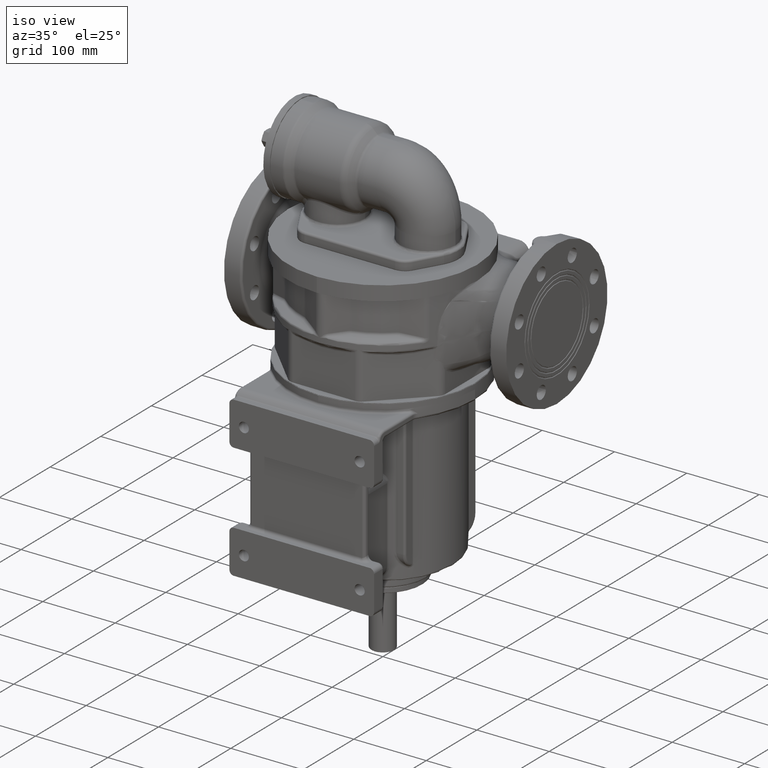
[diagram: clean part render]
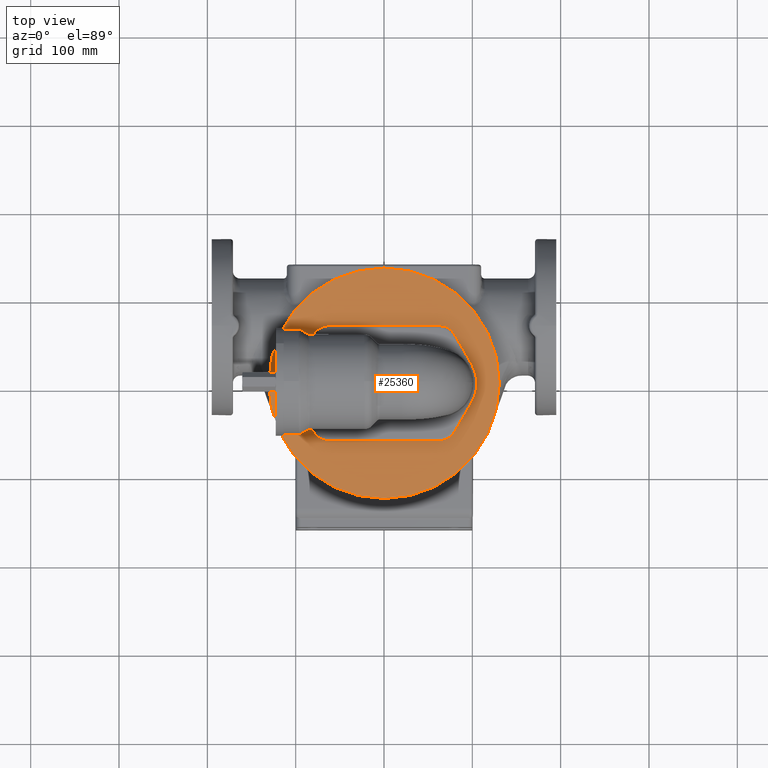
[diagram: tour spotlight — one face highlighted and labeled with its STEP entity id]
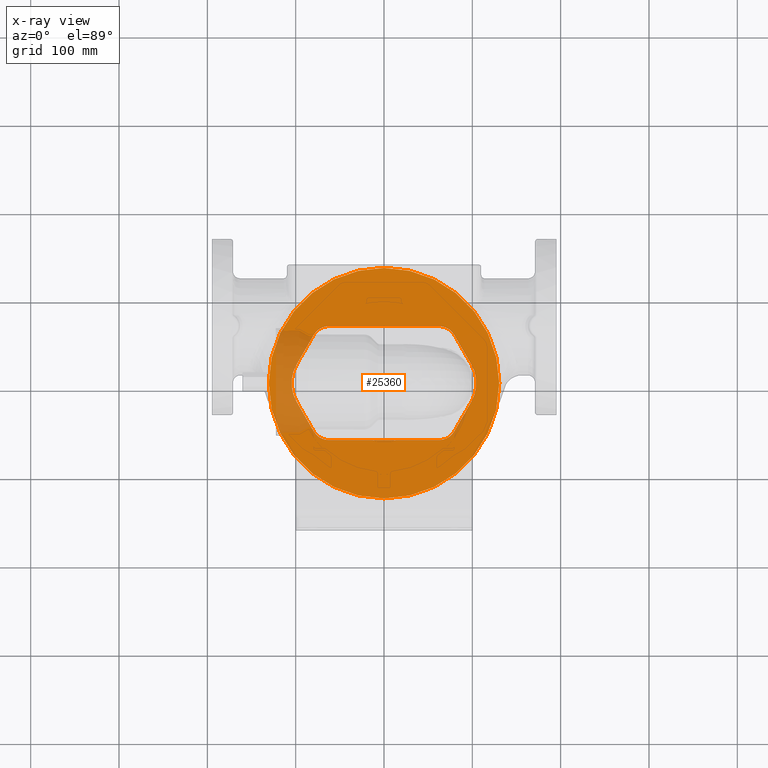
[diagram: x-ray of the same camera — body ghosted, this tour face saturated]
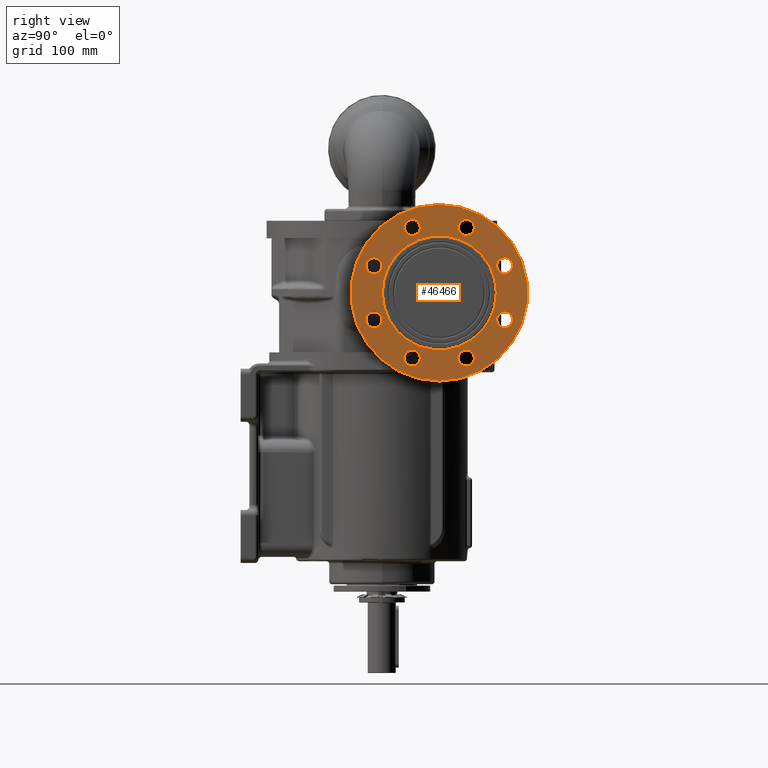
[diagram: tour spotlight — one face highlighted and labeled with its STEP entity id]
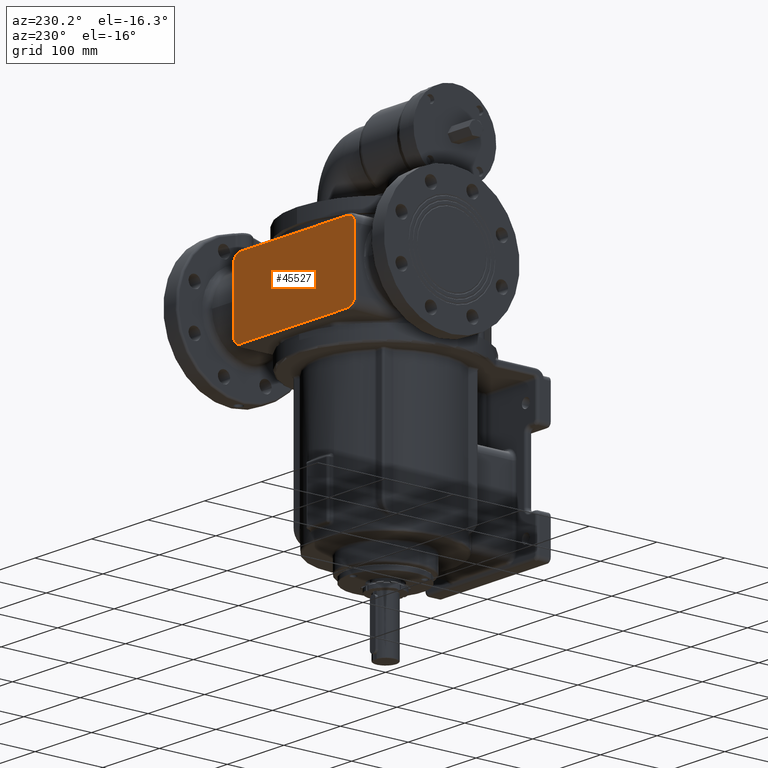
[diagram: tour spotlight — one face highlighted and labeled with its STEP entity id]
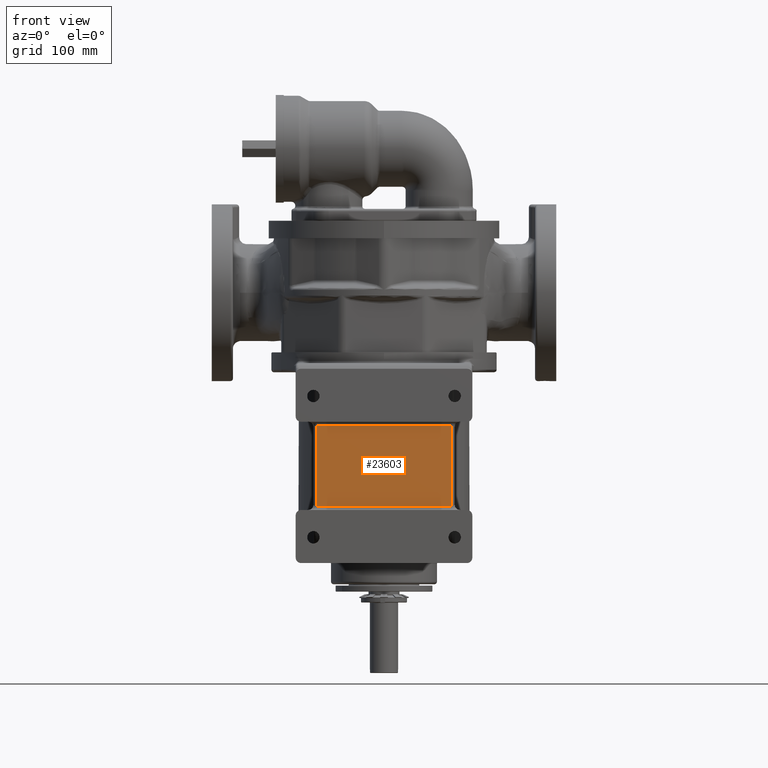
[diagram: tour spotlight — one face highlighted and labeled with its STEP entity id]
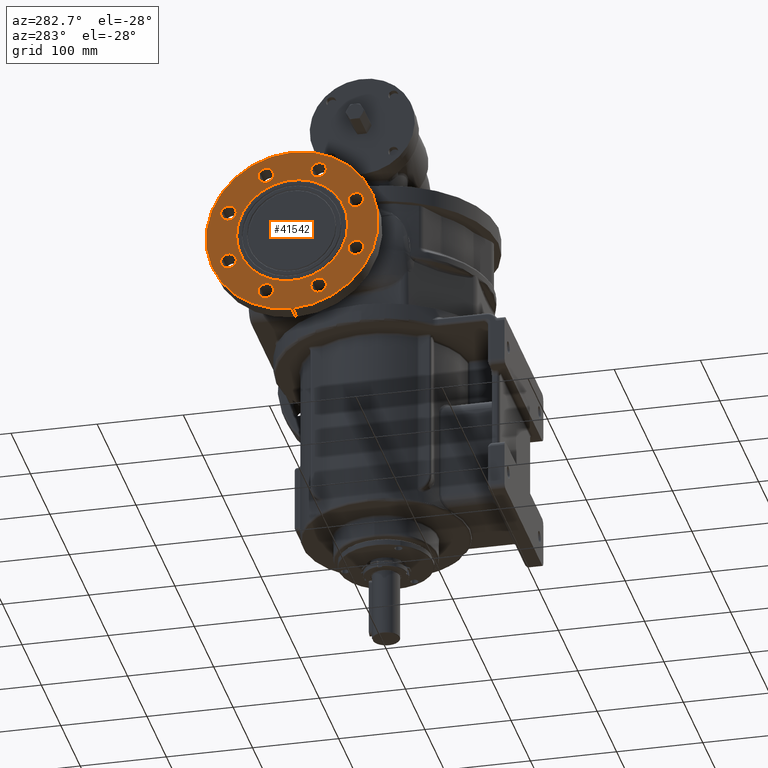
[diagram: tour spotlight — one face highlighted and labeled with its STEP entity id]
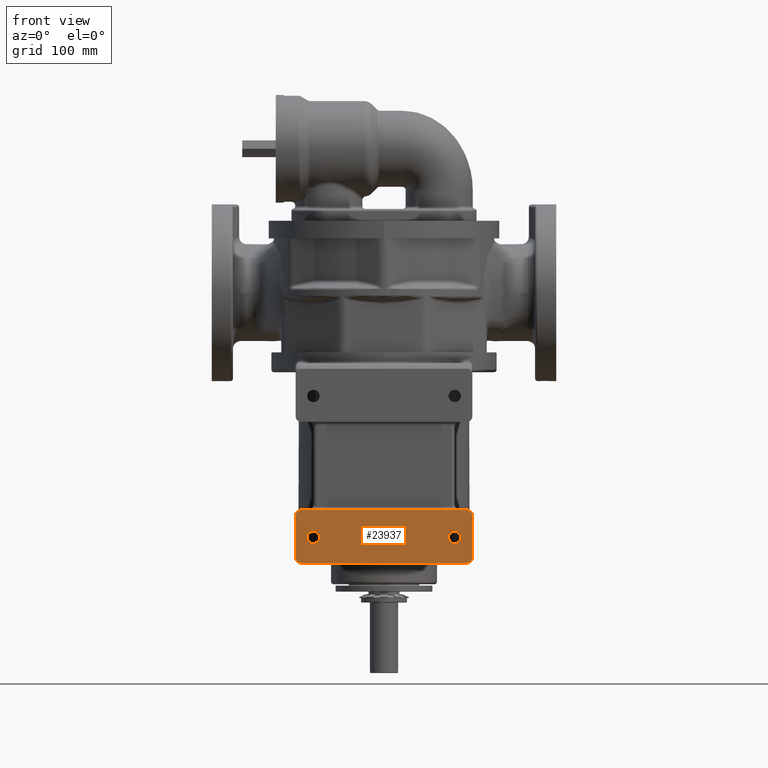
[diagram: tour spotlight — one face highlighted and labeled with its STEP entity id]
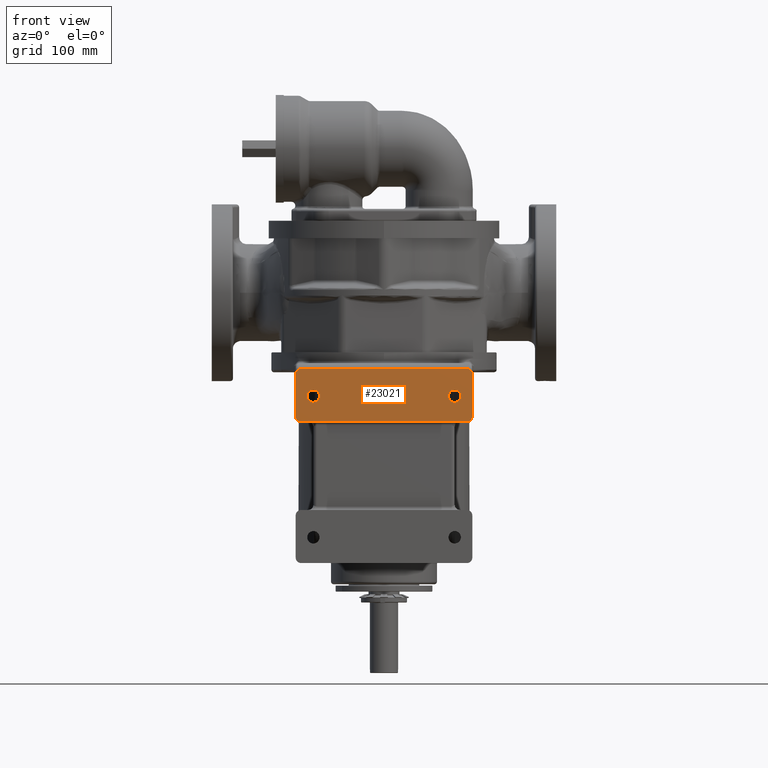
[diagram: tour spotlight — one face highlighted and labeled with its STEP entity id]
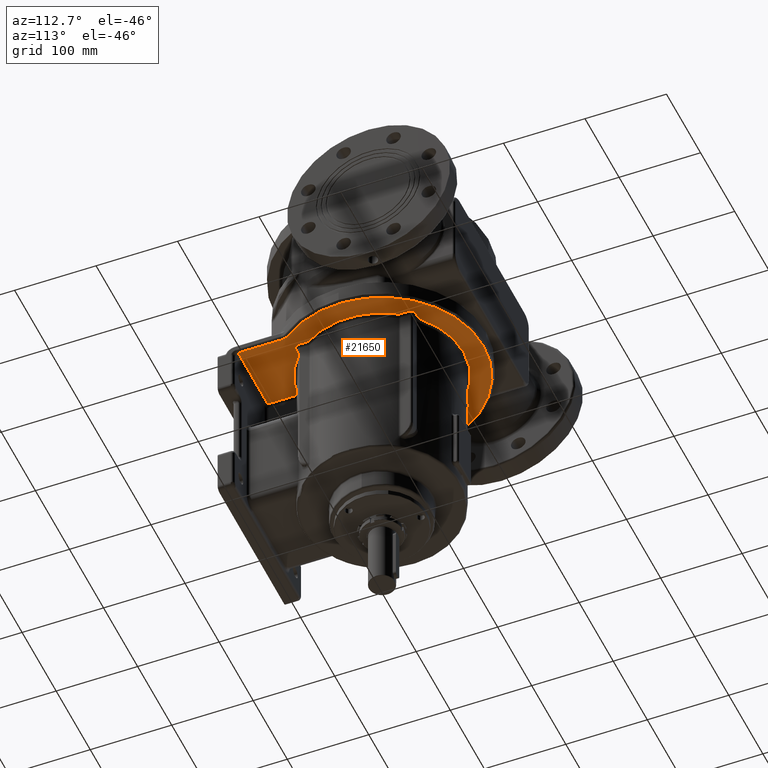
[diagram: tour spotlight — one face highlighted and labeled with its STEP entity id]
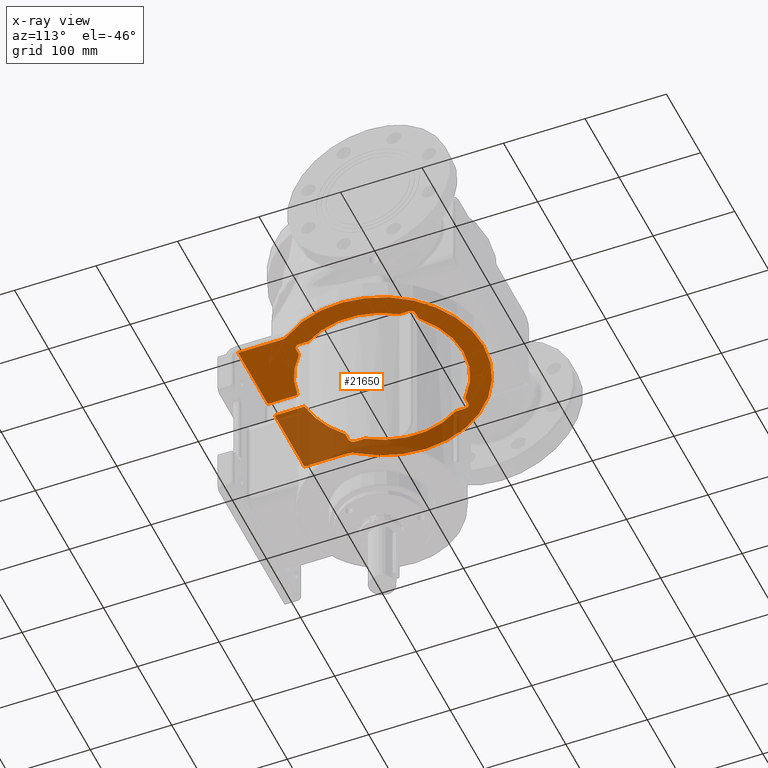
[diagram: x-ray of the same camera — body ghosted, this tour face saturated]
A machine part: a face-by-face anatomy tour. The part has 811 B-rep faces; the first image is the clean iso view, then the 8 largest visible faces are spotlighted one at a time (largest first), each with its STEP entity span.

Face 1 — top view, entity #25360. An x-ray twin of the same camera follows (body ghosted, this face saturated) — the face is partly hidden behind the body. In plain terms, the highlighted planar face has unit normal (0, 0, -1).
Definition (entity closure, byte-faithful):
#5740=CARTESIAN_POINT('',(4.011873084582E-13,-1.915371537267E-13,1.575E2));
#5741=DIRECTION('',(0.E0,0.E0,1.E0));
#5742=DIRECTION('',(0.E0,-1.E0,0.E0));
#5743=AXIS2_PLACEMENT_3D('',#5740,#5741,#5742);
#5750=CARTESIAN_POINT('',(4.011873084582E-13,-1.915371537267E-13,1.575E2));
#5751=DIRECTION('',(0.E0,0.E0,1.E0));
#5752=DIRECTION('',(0.E0,1.E0,0.E0));
#5753=AXIS2_PLACEMENT_3D('',#5750,#5751,#5752);
#5768=DIRECTION('',(5.E-1,-8.660254037844E-1,0.E0));
#5769=VECTOR('',#5768,3.897114317030E1);
#5770=CARTESIAN_POINT('',(7.947243186434E1,5.479903810568E1,1.575E2));
#5771=LINE('',#5770,#5769);
#5777=CARTESIAN_POINT('',(6.25E1,-1.260126579707E-13,1.575E2));
#5778=DIRECTION('',(0.E0,0.E0,1.E0));
#5779=DIRECTION('',(8.660254037844E-1,-5.E-1,0.E0));
#5780=AXIS2_PLACEMENT_3D('',#5777,#5778,#5779);
#5787=DIRECTION('',(-5.E-1,-8.660254037844E-1,0.E0));
#5788=VECTOR('',#5787,3.897114317030E1);
#5789=CARTESIAN_POINT('',(9.895800344949E1,-2.104903810568E1,1.575E2));
#5790=LINE('',#5789,#5788);
#5796=CARTESIAN_POINT('',(6.25E1,-4.5E1,1.575E2));
#5797=DIRECTION('',(0.E0,0.E0,1.E0));
#5798=DIRECTION('',(0.E0,-1.E0,0.E0));
#5799=AXIS2_PLACEMENT_3D('',#5796,#5797,#5798);
#5806=DIRECTION('',(-1.E0,0.E0,0.E0));
#5807=VECTOR('',#5806,1.25E2);
#5808=CARTESIAN_POINT('',(6.25E1,-6.459807621135E1,1.575E2));
#5809=LINE('',#5808,#5807);
#5815=CARTESIAN_POINT('',(-6.25E1,-4.5E1,1.575E2));
#5816=DIRECTION('',(0.E0,0.E0,1.E0));
#5817=DIRECTION('',(-8.660254037844E-1,-5.E-1,0.E0));
#5818=AXIS2_PLACEMENT_3D('',#5815,#5816,#5817);
#5825=DIRECTION('',(-5.E-1,8.660254037844E-1,0.E0));
#5826=VECTOR('',#5825,3.897114317030E1);
#5827=CARTESIAN_POINT('',(-7.947243186433E1,-5.479903810568E1,1.575E2));
#5828=LINE('',#5827,#5826);
#5834=CARTESIAN_POINT('',(-6.25E1,-2.431762190551E-13,1.575E2));
#5835=DIRECTION('',(0.E0,0.E0,1.E0));
#5836=DIRECTION('',(-8.660254037844E-1,5.E-1,0.E0));
#5837=AXIS2_PLACEMENT_3D('',#5834,#5835,#5836);
#5844=DIRECTION('',(5.E-1,8.660254037844E-1,0.E0));
#5845=VECTOR('',#5844,3.897114317030E1);
#5846=CARTESIAN_POINT('',(-9.895800344948E1,2.104903810568E1,1.575E2));
#5847=LINE('',#5846,#5845);
#5853=CARTESIAN_POINT('',(-6.25E1,4.5E1,1.575E2));
#5854=DIRECTION('',(0.E0,0.E0,1.E0));
#5855=DIRECTION('',(0.E0,1.E0,0.E0));
#5856=AXIS2_PLACEMENT_3D('',#5853,#5854,#5855);
#5863=DIRECTION('',(1.E0,0.E0,0.E0));
#5864=VECTOR('',#5863,1.25E2);
#5865=CARTESIAN_POINT('',(-6.25E1,6.459807621135E1,1.575E2));
#5866=LINE('',#5865,#5864);
#5872=CARTESIAN_POINT('',(6.25E1,4.5E1,1.575E2));
#5873=DIRECTION('',(0.E0,0.E0,1.E0));
#5874=DIRECTION('',(8.660254037844E-1,5.E-1,0.E0));
#5875=AXIS2_PLACEMENT_3D('',#5872,#5873,#5874);
#19452=CARTESIAN_POINT('',(5.170945922291E-13,-1.305E2,1.575E2));
#19453=CARTESIAN_POINT('',(3.012616654162E-13,1.305E2,1.575E2));
#19454=VERTEX_POINT('',#19452);
#19455=VERTEX_POINT('',#19453);
#19490=CARTESIAN_POINT('',(7.947243186434E1,5.479903810568E1,1.575E2));
#19491=CARTESIAN_POINT('',(9.895800344949E1,2.104903810568E1,1.575E2));
#19492=VERTEX_POINT('',#19490);
#19493=VERTEX_POINT('',#19491);
#19494=CARTESIAN_POINT('',(6.25E1,6.459807621135E1,1.575E2));
#19495=VERTEX_POINT('',#19494);
#19496=CARTESIAN_POINT('',(-6.25E1,6.459807621135E1,1.575E2));
#19497=VERTEX_POINT('',#19496);
#19498=CARTESIAN_POINT('',(-7.947243186433E1,5.479903810568E1,1.575E2));
#19499=VERTEX_POINT('',#19498);
#19500=CARTESIAN_POINT('',(-9.895800344948E1,2.104903810568E1,1.575E2));
#19501=VERTEX_POINT('',#19500);
#19502=CARTESIAN_POINT('',(-9.895800344949E1,-2.104903810568E1,1.575E2));
#19503=VERTEX_POINT('',#19502);
#19504=CARTESIAN_POINT('',(-7.947243186433E1,-5.479903810568E1,1.575E2));
#19505=VERTEX_POINT('',#19504);
#19506=CARTESIAN_POINT('',(-6.25E1,-6.459807621135E1,1.575E2));
#19507=VERTEX_POINT('',#19506);
#19508=CARTESIAN_POINT('',(6.25E1,-6.459807621135E1,1.575E2));
#19509=VERTEX_POINT('',#19508);
#19510=CARTESIAN_POINT('',(7.947243186434E1,-5.479903810568E1,1.575E2));
#19511=VERTEX_POINT('',#19510);
#19512=CARTESIAN_POINT('',(9.895800344949E1,-2.104903810568E1,1.575E2));
#19513=VERTEX_POINT('',#19512);
#25324=CARTESIAN_POINT('',(4.011873084582E-13,-1.838218788920E-13,1.575E2));
#25325=DIRECTION('',(0.E0,0.E0,-1.E0));
#25326=DIRECTION('',(-1.E0,0.E0,0.E0));
#25327=AXIS2_PLACEMENT_3D('',#25324,#25325,#25326);
#25328=PLANE('',#25327);
#25329=ORIENTED_EDGE('',*,*,#25314,.F.);
#25331=ORIENTED_EDGE('',*,*,#25330,.F.);
#25332=EDGE_LOOP('',(#25329,#25331));
#25333=FACE_OUTER_BOUND('',#25332,.F.);
#25335=ORIENTED_EDGE('',*,*,#25334,.F.);
#25337=ORIENTED_EDGE('',*,*,#25336,.T.);
#25339=ORIENTED_EDGE('',*,*,#25338,.F.);
#25341=ORIENTED_EDGE('',*,*,#25340,.T.);
#25343=ORIENTED_EDGE('',*,*,#25342,.F.);
#25345=ORIENTED_EDGE('',*,*,#25344,.T.);
#25347=ORIENTED_EDGE('',*,*,#25346,.F.);
#25349=ORIENTED_EDGE('',*,*,#25348,.T.);
#25351=ORIENTED_EDGE('',*,*,#25350,.F.);
#25353=ORIENTED_EDGE('',*,*,#25352,.T.);
#25355=ORIENTED_EDGE('',*,*,#25354,.F.);
#25357=ORIENTED_EDGE('',*,*,#25356,.T.);
#25358=EDGE_LOOP('',(#25335,#25337,#25339,#25341,#25343,#25345,#25347,#25349,
#25351,#25353,#25355,#25357));
#25359=FACE_BOUND('',#25358,.F.);
#25360=ADVANCED_FACE('',(#25333,#25359),#25328,.F.);
#5744=CIRCLE('',#5743,1.305E2);
#5754=CIRCLE('',#5753,1.305E2);
#5781=CIRCLE('',#5780,4.209807621135E1);
#5800=CIRCLE('',#5799,1.959807621135E1);
#5819=CIRCLE('',#5818,1.959807621135E1);
#5838=CIRCLE('',#5837,4.209807621135E1);
#5857=CIRCLE('',#5856,1.959807621135E1);
#5876=CIRCLE('',#5875,1.959807621135E1);
#25314=EDGE_CURVE('',#19454,#19455,#5744,.T.);
#25330=EDGE_CURVE('',#19455,#19454,#5754,.T.);
#25334=EDGE_CURVE('',#19492,#19493,#5771,.T.);
#25336=EDGE_CURVE('',#19492,#19495,#5876,.T.);
#25338=EDGE_CURVE('',#19497,#19495,#5866,.T.);
#25340=EDGE_CURVE('',#19497,#19499,#5857,.T.);
#25342=EDGE_CURVE('',#19501,#19499,#5847,.T.);
#25344=EDGE_CURVE('',#19501,#19503,#5838,.T.);
#25346=EDGE_CURVE('',#19505,#19503,#5828,.T.);
#25348=EDGE_CURVE('',#19505,#19507,#5819,.T.);
#25350=EDGE_CURVE('',#19509,#19507,#5809,.T.);
#25352=EDGE_CURVE('',#19509,#19511,#5800,.T.);
#25354=EDGE_CURVE('',#19513,#19511,#5790,.T.);
#25356=EDGE_CURVE('',#19513,#19493,#5781,.T.);

Face 2 — right view, entity #46466. In plain terms, the highlighted planar face has unit normal (-1, 0, 0).
Definition (entity closure, byte-faithful):
#12954=CARTESIAN_POINT('',(1.95E2,6.5E1,7.6E1));
#12955=DIRECTION('',(-1.E0,0.E0,0.E0));
#12956=DIRECTION('',(0.E0,3.595346242946E-14,1.E0));
#12957=AXIS2_PLACEMENT_3D('',#12954,#12955,#12956);
#13196=CARTESIAN_POINT('',(1.95E2,6.5E1,7.6E1));
#13197=DIRECTION('',(-1.E0,0.E0,0.E0));
#13198=DIRECTION('',(0.E0,0.E0,-1.E0));
#13199=AXIS2_PLACEMENT_3D('',#13196,#13197,#13198);
#13205=CARTESIAN_POINT('',(1.95E2,6.5E1,7.6E1));
#13206=DIRECTION('',(1.E0,0.E0,0.E0));
#13207=DIRECTION('',(0.E0,-1.E0,0.E0));
#13208=AXIS2_PLACEMENT_3D('',#13205,#13206,#13207);
#13210=CARTESIAN_POINT('',(1.95E2,6.5E1,7.6E1));
#13211=DIRECTION('',(1.E0,0.E0,0.E0));
#13212=DIRECTION('',(0.E0,1.E0,0.E0));
#13213=AXIS2_PLACEMENT_3D('',#13210,#13211,#13212);
#13215=CARTESIAN_POINT('',(1.95E2,3.438532541079E1,2.089637399097E0));
#13216=DIRECTION('',(-1.E0,0.E0,0.E0));
#13217=DIRECTION('',(0.E0,1.E0,0.E0));
#13218=AXIS2_PLACEMENT_3D('',#13215,#13216,#13217);
#13220=CARTESIAN_POINT('',(1.95E2,3.438532541079E1,2.089637399097E0));
#13221=DIRECTION('',(-1.E0,0.E0,0.E0));
#13222=DIRECTION('',(0.E0,-1.E0,0.E0));
#13223=AXIS2_PLACEMENT_3D('',#13220,#13221,#13222);
#13225=CARTESIAN_POINT('',(1.95E2,-8.910362600903E0,4.538532541079E1));
#13226=DIRECTION('',(-1.E0,0.E0,0.E0));
#13227=DIRECTION('',(0.E0,7.071067811865E-1,-7.071067811865E-1));
#13228=AXIS2_PLACEMENT_3D('',#13225,#13226,#13227);
#13230=CARTESIAN_POINT('',(1.95E2,-8.910362600903E0,4.538532541079E1));
#13231=DIRECTION('',(-1.E0,0.E0,0.E0));
#13232=DIRECTION('',(0.E0,-7.071067811865E-1,7.071067811865E-1));
#13233=AXIS2_PLACEMENT_3D('',#13230,#13231,#13232);
#13235=CARTESIAN_POINT('',(1.95E2,-8.910362600903E0,1.066146745892E2));
#13236=DIRECTION('',(-1.E0,0.E0,0.E0));
#13237=DIRECTION('',(0.E0,0.E0,-1.E0));
#13238=AXIS2_PLACEMENT_3D('',#13235,#13236,#13237);
#13240=CARTESIAN_POINT('',(1.95E2,-8.910362600903E0,1.066146745892E2));
#13241=DIRECTION('',(-1.E0,0.E0,0.E0));
#13242=DIRECTION('',(0.E0,0.E0,1.E0));
#13243=AXIS2_PLACEMENT_3D('',#13240,#13241,#13242);
#13245=CARTESIAN_POINT('',(1.95E2,3.438532541079E1,1.499103626009E2));
#13246=DIRECTION('',(-1.E0,0.E0,0.E0));
#13247=DIRECTION('',(0.E0,-7.071067811865E-1,-7.071067811866E-1));
#13248=AXIS2_PLACEMENT_3D('',#13245,#13246,#13247);
#13250=CARTESIAN_POINT('',(1.95E2,3.438532541079E1,1.499103626009E2));
#13251=DIRECTION('',(-1.E0,0.E0,0.E0));
#13252=DIRECTION('',(0.E0,7.071067811865E-1,7.071067811865E-1));
#13253=AXIS2_PLACEMENT_3D('',#13250,#13251,#13252);
#13255=CARTESIAN_POINT('',(1.95E2,9.561467458921E1,1.499103626009E2));
#13256=DIRECTION('',(-1.E0,0.E0,0.E0));
#13257=DIRECTION('',(0.E0,-1.E0,0.E0));
#13258=AXIS2_PLACEMENT_3D('',#13255,#13256,#13257);
#13260=CARTESIAN_POINT('',(1.95E2,9.561467458921E1,1.499103626009E2));
#13261=DIRECTION('',(-1.E0,0.E0,0.E0));
#13262=DIRECTION('',(0.E0,1.E0,0.E0));
#13263=AXIS2_PLACEMENT_3D('',#13260,#13261,#13262);
#13265=CARTESIAN_POINT('',(1.95E2,1.389103626009E2,1.066146745892E2));
#13266=DIRECTION('',(-1.E0,0.E0,0.E0));
#13267=DIRECTION('',(0.E0,-7.071067811865E-1,7.071067811865E-1));
#13268=AXIS2_PLACEMENT_3D('',#13265,#13266,#13267);
#13270=CARTESIAN_POINT('',(1.95E2,1.389103626009E2,1.066146745892E2));
#13271=DIRECTION('',(-1.E0,0.E0,0.E0));
#13272=DIRECTION('',(0.E0,7.071067811865E-1,-7.071067811865E-1));
#13273=AXIS2_PLACEMENT_3D('',#13270,#13271,#13272);
#13275=CARTESIAN_POINT('',(1.95E2,1.389103626009E2,4.538532541079E1));
#13276=DIRECTION('',(-1.E0,0.E0,0.E0));
#13277=DIRECTION('',(0.E0,0.E0,1.E0));
#13278=AXIS2_PLACEMENT_3D('',#13275,#13276,#13277);
#13280=CARTESIAN_POINT('',(1.95E2,1.389103626009E2,4.538532541079E1));
#13281=DIRECTION('',(-1.E0,0.E0,0.E0));
#13282=DIRECTION('',(0.E0,0.E0,-1.E0));
#13283=AXIS2_PLACEMENT_3D('',#13280,#13281,#13282);
#13285=CARTESIAN_POINT('',(1.95E2,9.561467458921E1,2.089637399097E0));
#13286=DIRECTION('',(-1.E0,0.E0,0.E0));
#13287=DIRECTION('',(0.E0,7.071067811865E-1,7.071067811866E-1));
#13288=AXIS2_PLACEMENT_3D('',#13285,#13286,#13287);
#13290=CARTESIAN_POINT('',(1.95E2,9.561467458921E1,2.089637399097E0));
#13291=DIRECTION('',(-1.E0,0.E0,0.E0));
#13292=DIRECTION('',(0.E0,-7.071067811865E-1,-7.071067811865E-1));
#13293=AXIS2_PLACEMENT_3D('',#13290,#13291,#13292);
#18774=CARTESIAN_POINT('',(1.95E2,6.5E1,1.76E2));
#18775=CARTESIAN_POINT('',(1.95E2,6.5E1,-2.4E1));
#18776=VERTEX_POINT('',#18774);
#18777=VERTEX_POINT('',#18775);
#18980=CARTESIAN_POINT('',(1.95E2,4.338532541079E1,2.089637399097E0));
#18981=CARTESIAN_POINT('',(1.95E2,2.538532541079E1,2.089637399097E0));
#18982=VERTEX_POINT('',#18980);
#18983=VERTEX_POINT('',#18981);
#18988=CARTESIAN_POINT('',(1.95E2,-2.546401570224E0,3.902136438011E1));
#18989=CARTESIAN_POINT('',(1.95E2,-1.527432363158E1,5.174928644147E1));
#18990=VERTEX_POINT('',#18988);
#18991=VERTEX_POINT('',#18989);
#18996=CARTESIAN_POINT('',(1.95E2,-8.910362600903E0,9.761467458921E1));
#18997=CARTESIAN_POINT('',(1.95E2,-8.910362600903E0,1.156146745892E2));
#18998=VERTEX_POINT('',#18996);
#18999=VERTEX_POINT('',#18997);
#19004=CARTESIAN_POINT('',(1.95E2,2.802136438011E1,1.435464015702E2));
#19005=CARTESIAN_POINT('',(1.95E2,4.074928644147E1,1.562743236316E2));
#19006=VERTEX_POINT('',#19004);
#19007=VERTEX_POINT('',#19005);
#19012=CARTESIAN_POINT('',(1.95E2,8.661467458921E1,1.499103626009E2));
#19013=CARTESIAN_POINT('',(1.95E2,1.046146745892E2,1.499103626009E2));
#19014=VERTEX_POINT('',#19012);
#19015=VERTEX_POINT('',#19013);
#19020=CARTESIAN_POINT('',(1.95E2,1.325464015702E2,1.129786356199E2));
#19021=CARTESIAN_POINT('',(1.95E2,1.452743236316E2,1.002507135585E2));
#19022=VERTEX_POINT('',#19020);
#19023=VERTEX_POINT('',#19021);
#19028=CARTESIAN_POINT('',(1.95E2,1.389103626009E2,5.438532541079E1));
#19029=CARTESIAN_POINT('',(1.95E2,1.389103626009E2,3.638532541079E1));
#19030=VERTEX_POINT('',#19028);
#19031=VERTEX_POINT('',#19029);
#19036=CARTESIAN_POINT('',(1.95E2,1.019786356199E2,8.453598429776E0));
#19037=CARTESIAN_POINT('',(1.95E2,8.925071355853E1,-4.274323631582E0));
#19038=VERTEX_POINT('',#19036);
#19039=VERTEX_POINT('',#19037);
#19108=CARTESIAN_POINT('',(1.95E2,5.000000000001E-1,7.6E1));
#19109=CARTESIAN_POINT('',(1.95E2,1.295E2,7.6E1));
#19110=VERTEX_POINT('',#19108);
#19111=VERTEX_POINT('',#19109);
#46403=CARTESIAN_POINT('',(1.95E2,-9.908696684785E-14,7.6E1));
#46404=DIRECTION('',(-1.E0,0.E0,0.E0));
#46405=DIRECTION('',(0.E0,1.E0,0.E0));
#46406=AXIS2_PLACEMENT_3D('',#46403,#46404,#46405);
#46407=PLANE('',#46406);
#46408=ORIENTED_EDGE('',*,*,#46332,.T.);
#46409=ORIENTED_EDGE('',*,*,#46397,.T.);
#46410=EDGE_LOOP('',(#46408,#46409));
#46411=FACE_OUTER_BOUND('',#46410,.F.);
#46413=ORIENTED_EDGE('',*,*,#46412,.T.);
#46415=ORIENTED_EDGE('',*,*,#46414,.T.);
#46416=EDGE_LOOP('',(#46413,#46415));
#46417=FACE_BOUND('',#46416,.F.);
#46419=ORIENTED_EDGE('',*,*,#46418,.F.);
#46421=ORIENTED_EDGE('',*,*,#46420,.F.);
#46422=EDGE_LOOP('',(#46419,#46421));
#46423=FACE_BOUND('',#46422,.F.);
#46425=ORIENTED_EDGE('',*,*,#46424,.F.);
#46427=ORIENTED_EDGE('',*,*,#46426,.F.);
#46428=EDGE_LOOP('',(#46425,#46427));
#46429=FACE_BOUND('',#46428,.F.);
#46431=ORIENTED_EDGE('',*,*,#46430,.F.);
#46433=ORIENTED_EDGE('',*,*,#46432,.F.);
#46434=EDGE_LOOP('',(#46431,#46433));
#46435=FACE_BOUND('',#46434,.F.);
#46437=ORIENTED_EDGE('',*,*,#46436,.F.);
#46439=ORIENTED_EDGE('',*,*,#46438,.F.);
#46440=EDGE_LOOP('',(#46437,#46439));
#46441=FACE_BOUND('',#46440,.F.);
#46443=ORIENTED_EDGE('',*,*,#46442,.F.);
#46445=ORIENTED_EDGE('',*,*,#46444,.F.);
#46446=EDGE_LOOP('',(#46443,#46445));
#46447=FACE_BOUND('',#46446,.F.);
#46449=ORIENTED_EDGE('',*,*,#46448,.F.);
#46451=ORIENTED_EDGE('',*,*,#46450,.F.);
#46452=EDGE_LOOP('',(#46449,#46451));
#46453=FACE_BOUND('',#46452,.F.);
#46455=ORIENTED_EDGE('',*,*,#46454,.F.);
#46457=ORIENTED_EDGE('',*,*,#46456,.F.);
#46458=EDGE_LOOP('',(#46455,#46457));
#46459=FACE_BOUND('',#46458,.F.);
#46461=ORIENTED_EDGE('',*,*,#46460,.F.);
#46463=ORIENTED_EDGE('',*,*,#46462,.F.);
#46464=EDGE_LOOP('',(#46461,#46463));
#46465=FACE_BOUND('',#46464,.F.);
#46466=ADVANCED_FACE('',(#46411,#46417,#46423,#46429,#46435,#46441,#46447,
#46453,#46459,#46465),#46407,.F.);
#12958=CIRCLE('',#12957,1.E2);
#13200=CIRCLE('',#13199,1.E2);
#13209=CIRCLE('',#13208,6.45E1);
#13214=CIRCLE('',#13213,6.45E1);
#13219=CIRCLE('',#13218,9.E0);
#13224=CIRCLE('',#13223,9.E0);
#13229=CIRCLE('',#13228,9.E0);
#13234=CIRCLE('',#13233,9.E0);
#13239=CIRCLE('',#13238,9.E0);
#13244=CIRCLE('',#13243,9.E0);
#13249=CIRCLE('',#13248,9.E0);
#13254=CIRCLE('',#13253,9.E0);
#13259=CIRCLE('',#13258,9.E0);
#13264=CIRCLE('',#13263,9.E0);
#13269=CIRCLE('',#13268,9.E0);
#13274=CIRCLE('',#13273,9.E0);
#13279=CIRCLE('',#13278,9.E0);
#13284=CIRCLE('',#13283,9.E0);
#13289=CIRCLE('',#13288,9.E0);
#13294=CIRCLE('',#13293,9.E0);
#46332=EDGE_CURVE('',#18776,#18777,#12958,.T.);
#46397=EDGE_CURVE('',#18777,#18776,#13200,.T.);
#46412=EDGE_CURVE('',#19110,#19111,#13209,.T.);
#46414=EDGE_CURVE('',#19111,#19110,#13214,.T.);
#46418=EDGE_CURVE('',#18982,#18983,#13219,.T.);
#46420=EDGE_CURVE('',#18983,#18982,#13224,.T.);
#46424=EDGE_CURVE('',#18990,#18991,#13229,.T.);
#46426=EDGE_CURVE('',#18991,#18990,#13234,.T.);
#46430=EDGE_CURVE('',#18998,#18999,#13239,.T.);
#46432=EDGE_CURVE('',#18999,#18998,#13244,.T.);
#46436=EDGE_CURVE('',#19006,#19007,#13249,.T.);
#46438=EDGE_CURVE('',#19007,#19006,#13254,.T.);
#46442=EDGE_CURVE('',#19014,#19015,#13259,.T.);
#46444=EDGE_CURVE('',#19015,#19014,#13264,.T.);
#46448=EDGE_CURVE('',#19022,#19023,#13269,.T.);
#46450=EDGE_CURVE('',#19023,#19022,#13274,.T.);
#46454=EDGE_CURVE('',#19030,#19031,#13279,.T.);
#46456=EDGE_CURVE('',#19031,#19030,#13284,.T.);
#46460=EDGE_CURVE('',#19038,#19039,#13289,.T.);
#46462=EDGE_CURVE('',#19039,#19038,#13294,.T.);

Face 3 — auxiliary view, entity #45527. In plain terms, the highlighted planar face has unit normal (0, 1, 0).
Definition (entity closure, byte-faithful):
#12536=CARTESIAN_POINT('',(9.5E1,1.35E2,2.85E1));
#12537=DIRECTION('',(0.E0,1.E0,0.E0));
#12538=DIRECTION('',(1.E0,0.E0,0.E0));
#12539=AXIS2_PLACEMENT_3D('',#12536,#12537,#12538);
#12541=DIRECTION('',(0.E0,0.E0,-1.E0));
#12542=VECTOR('',#12541,8.5E1);
#12543=CARTESIAN_POINT('',(1.07E2,1.35E2,1.135E2));
#12544=LINE('',#12543,#12542);
#12545=CARTESIAN_POINT('',(9.5E1,1.35E2,1.135E2));
#12546=DIRECTION('',(0.E0,1.E0,0.E0));
#12547=DIRECTION('',(0.E0,0.E0,1.E0));
#12548=AXIS2_PLACEMENT_3D('',#12545,#12546,#12547);
#12550=DIRECTION('',(1.E0,0.E0,0.E0));
#12551=VECTOR('',#12550,1.9E2);
#12552=CARTESIAN_POINT('',(-9.5E1,1.35E2,1.255E2));
#12553=LINE('',#12552,#12551);
#12554=CARTESIAN_POINT('',(-9.5E1,1.35E2,1.135E2));
#12555=DIRECTION('',(0.E0,1.E0,0.E0));
#12556=DIRECTION('',(-1.E0,0.E0,0.E0));
#12557=AXIS2_PLACEMENT_3D('',#12554,#12555,#12556);
#12559=DIRECTION('',(0.E0,0.E0,1.E0));
#12560=VECTOR('',#12559,8.5E1);
#12561=CARTESIAN_POINT('',(-1.07E2,1.35E2,2.85E1));
#12562=LINE('',#12561,#12560);
#12563=CARTESIAN_POINT('',(-9.5E1,1.35E2,2.85E1));
#12564=DIRECTION('',(0.E0,1.E0,0.E0));
#12565=DIRECTION('',(0.E0,0.E0,-1.E0));
#12566=AXIS2_PLACEMENT_3D('',#12563,#12564,#12565);
#12568=DIRECTION('',(-1.E0,0.E0,0.E0));
#12569=VECTOR('',#12568,1.9E2);
#12570=CARTESIAN_POINT('',(9.5E1,1.35E2,1.65E1));
#12571=LINE('',#12570,#12569);
#18672=CARTESIAN_POINT('',(1.07E2,1.35E2,2.85E1));
#18673=CARTESIAN_POINT('',(9.5E1,1.35E2,1.65E1));
#18674=VERTEX_POINT('',#18672);
#18675=VERTEX_POINT('',#18673);
#18680=CARTESIAN_POINT('',(-9.5E1,1.35E2,1.65E1));
#18681=VERTEX_POINT('',#18680);
#18684=CARTESIAN_POINT('',(-1.07E2,1.35E2,2.85E1));
#18685=VERTEX_POINT('',#18684);
#18688=CARTESIAN_POINT('',(-1.07E2,1.35E2,1.135E2));
#18689=VERTEX_POINT('',#18688);
#18692=CARTESIAN_POINT('',(-9.5E1,1.35E2,1.255E2));
#18693=VERTEX_POINT('',#18692);
#18696=CARTESIAN_POINT('',(9.5E1,1.35E2,1.255E2));
#18697=VERTEX_POINT('',#18696);
#18700=CARTESIAN_POINT('',(1.07E2,1.35E2,1.135E2));
#18701=VERTEX_POINT('',#18700);
#45505=CARTESIAN_POINT('',(1.542399008522E-13,1.35E2,7.6E1));
#45506=DIRECTION('',(0.E0,1.E0,0.E0));
#45507=DIRECTION('',(-1.E0,0.E0,0.E0));
#45508=AXIS2_PLACEMENT_3D('',#45505,#45506,#45507);
#45509=PLANE('',#45508);
#45511=ORIENTED_EDGE('',*,*,#45510,.F.);
#45513=ORIENTED_EDGE('',*,*,#45512,.F.);
#45515=ORIENTED_EDGE('',*,*,#45514,.F.);
#45517=ORIENTED_EDGE('',*,*,#45516,.F.);
#45518=ORIENTED_EDGE('',*,*,#45495,.F.);
#45520=ORIENTED_EDGE('',*,*,#45519,.F.);
#45522=ORIENTED_EDGE('',*,*,#45521,.F.);
#45524=ORIENTED_EDGE('',*,*,#45523,.F.);
#45525=EDGE_LOOP('',(#45511,#45513,#45515,#45517,#45518,#45520,#45522,#45524));
#45526=FACE_OUTER_BOUND('',#45525,.F.);
#45527=ADVANCED_FACE('',(#45526),#45509,.T.);
#12540=CIRCLE('',#12539,1.2E1);
#12549=CIRCLE('',#12548,1.2E1);
#12558=CIRCLE('',#12557,1.2E1);
#12567=CIRCLE('',#12566,1.2E1);
#45495=EDGE_CURVE('',#18689,#18693,#12558,.T.);
#45510=EDGE_CURVE('',#18674,#18675,#12540,.T.);
#45512=EDGE_CURVE('',#18701,#18674,#12544,.T.);
#45514=EDGE_CURVE('',#18697,#18701,#12549,.T.);
#45516=EDGE_CURVE('',#18693,#18697,#12553,.T.);
#45519=EDGE_CURVE('',#18685,#18689,#12562,.T.);
#45521=EDGE_CURVE('',#18681,#18685,#12567,.T.);
#45523=EDGE_CURVE('',#18675,#18681,#12571,.T.);

Face 4 — front view, entity #23603. In plain terms, the highlighted planar face has unit normal (0, -1, 0).
Definition (entity closure, byte-faithful):
#3702=DIRECTION('',(0.E0,8.671710692516E-13,1.E0));
#3703=VECTOR('',#3702,9.2E1);
#3704=CARTESIAN_POINT('',(7.600000000001E1,-1.499999996378E2,-1.66E2));
#3705=LINE('',#3704,#3703);
#3706=DIRECTION('',(1.E0,5.246797148796E-13,0.E0));
#3707=VECTOR('',#3706,1.52E2);
#3708=CARTESIAN_POINT('',(-7.600000000001E1,-1.499999996378E2,-7.4E1));
#3709=LINE('',#3708,#3707);
#3710=DIRECTION('',(-1.E0,5.248666998101E-13,0.E0));
#3711=VECTOR('',#3710,1.52E2);
#3712=CARTESIAN_POINT('',(7.600000000001E1,-1.499999996378E2,-1.66E2));
#3713=LINE('',#3712,#3711);
#3784=DIRECTION('',(0.E0,8.668621376273E-13,-1.E0));
#3785=VECTOR('',#3784,9.2E1);
#3786=CARTESIAN_POINT('',(-7.600000000001E1,-1.499999996378E2,-7.4E1));
#3787=LINE('',#3786,#3785);
#17955=CARTESIAN_POINT('',(-7.600000000001E1,-1.499999996378E2,-7.4E1));
#17956=CARTESIAN_POINT('',(7.600000000001E1,-1.499999996377E2,-7.4E1));
#17957=VERTEX_POINT('',#17955);
#17958=VERTEX_POINT('',#17956);
#17967=CARTESIAN_POINT('',(7.600000000001E1,-1.499999996378E2,-1.66E2));
#17968=CARTESIAN_POINT('',(-7.600000000001E1,-1.499999996377E2,-1.66E2));
#17969=VERTEX_POINT('',#17967);
#17970=VERTEX_POINT('',#17968);
#23589=CARTESIAN_POINT('',(8.E1,-1.5E2,-1.7E2));
#23590=DIRECTION('',(0.E0,-1.E0,0.E0));
#23591=DIRECTION('',(0.E0,0.E0,1.E0));
#23592=AXIS2_PLACEMENT_3D('',#23589,#23590,#23591);
#23593=PLANE('',#23592);
#23595=ORIENTED_EDGE('',*,*,#23594,.T.);
#23596=ORIENTED_EDGE('',*,*,#23579,.F.);
#23598=ORIENTED_EDGE('',*,*,#23597,.T.);
#23600=ORIENTED_EDGE('',*,*,#23599,.F.);
#23601=EDGE_LOOP('',(#23595,#23596,#23598,#23600));
#23602=FACE_OUTER_BOUND('',#23601,.F.);
#23603=ADVANCED_FACE('',(#23602),#23593,.T.);
#23579=EDGE_CURVE('',#17969,#17958,#3705,.T.);
#23594=EDGE_CURVE('',#17957,#17958,#3709,.T.);
#23597=EDGE_CURVE('',#17969,#17970,#3713,.T.);
#23599=EDGE_CURVE('',#17957,#17970,#3787,.T.);

Face 5 — auxiliary view, entity #41542. In plain terms, the highlighted planar face has unit normal (-1, 0, 0).
Definition (entity closure, byte-faithful):
#10557=CARTESIAN_POINT('',(-1.95E2,6.5E1,7.6E1));
#10558=DIRECTION('',(-1.E0,0.E0,0.E0));
#10559=DIRECTION('',(0.E0,3.581135388231E-14,1.E0));
#10560=AXIS2_PLACEMENT_3D('',#10557,#10558,#10559);
#10653=CARTESIAN_POINT('',(-1.95E2,3.438532541079E1,2.089637399098E0));
#10654=DIRECTION('',(-1.E0,0.E0,0.E0));
#10655=DIRECTION('',(0.E0,1.E0,0.E0));
#10656=AXIS2_PLACEMENT_3D('',#10653,#10654,#10655);
#10658=CARTESIAN_POINT('',(-1.95E2,3.438532541079E1,2.089637399098E0));
#10659=DIRECTION('',(-1.E0,0.E0,0.E0));
#10660=DIRECTION('',(0.E0,-1.E0,0.E0));
#10661=AXIS2_PLACEMENT_3D('',#10658,#10659,#10660);
#10663=CARTESIAN_POINT('',(-1.95E2,-8.910362600903E0,4.538532541079E1));
#10664=DIRECTION('',(-1.E0,0.E0,0.E0));
#10665=DIRECTION('',(0.E0,7.071067811865E-1,-7.071067811865E-1));
#10666=AXIS2_PLACEMENT_3D('',#10663,#10664,#10665);
#10668=CARTESIAN_POINT('',(-1.95E2,-8.910362600903E0,4.538532541079E1));
#10669=DIRECTION('',(-1.E0,0.E0,0.E0));
#10670=DIRECTION('',(0.E0,-7.071067811865E-1,7.071067811865E-1));
#10671=AXIS2_PLACEMENT_3D('',#10668,#10669,#10670);
#10673=CARTESIAN_POINT('',(-1.95E2,-8.910362600903E0,1.066146745892E2));
#10674=DIRECTION('',(-1.E0,0.E0,0.E0));
#10675=DIRECTION('',(0.E0,0.E0,-1.E0));
#10676=AXIS2_PLACEMENT_3D('',#10673,#10674,#10675);
#10678=CARTESIAN_POINT('',(-1.95E2,-8.910362600903E0,1.066146745892E2));
#10679=DIRECTION('',(-1.E0,0.E0,0.E0));
#10680=DIRECTION('',(0.E0,0.E0,1.E0));
#10681=AXIS2_PLACEMENT_3D('',#10678,#10679,#10680);
#10683=CARTESIAN_POINT('',(-1.95E2,3.438532541079E1,1.499103626009E2));
#10684=DIRECTION('',(-1.E0,0.E0,0.E0));
#10685=DIRECTION('',(0.E0,-7.071067811865E-1,-7.071067811866E-1));
#10686=AXIS2_PLACEMENT_3D('',#10683,#10684,#10685);
#10688=CARTESIAN_POINT('',(-1.95E2,3.438532541079E1,1.499103626009E2));
#10689=DIRECTION('',(-1.E0,0.E0,0.E0));
#10690=DIRECTION('',(0.E0,7.071067811865E-1,7.071067811865E-1));
#10691=AXIS2_PLACEMENT_3D('',#10688,#10689,#10690);
#10693=CARTESIAN_POINT('',(-1.95E2,9.561467458921E1,1.499103626009E2));
#10694=DIRECTION('',(-1.E0,0.E0,0.E0));
#10695=DIRECTION('',(0.E0,-1.E0,0.E0));
#10696=AXIS2_PLACEMENT_3D('',#10693,#10694,#10695);
#10698=CARTESIAN_POINT('',(-1.95E2,9.561467458921E1,1.499103626009E2));
#10699=DIRECTION('',(-1.E0,0.E0,0.E0));
#10700=DIRECTION('',(0.E0,1.E0,0.E0));
#10701=AXIS2_PLACEMENT_3D('',#10698,#10699,#10700);
#10703=CARTESIAN_POINT('',(-1.95E2,1.389103626009E2,1.066146745892E2));
#10704=DIRECTION('',(-1.E0,0.E0,0.E0));
#10705=DIRECTION('',(0.E0,-7.071067811865E-1,7.071067811865E-1));
#10706=AXIS2_PLACEMENT_3D('',#10703,#10704,#10705);
#10708=CARTESIAN_POINT('',(-1.95E2,1.389103626009E2,1.066146745892E2));
#10709=DIRECTION('',(-1.E0,0.E0,0.E0));
#10710=DIRECTION('',(0.E0,7.071067811865E-1,-7.071067811865E-1));
#10711=AXIS2_PLACEMENT_3D('',#10708,#10709,#10710);
#10713=CARTESIAN_POINT('',(-1.95E2,1.389103626009E2,4.538532541079E1));
#10714=DIRECTION('',(-1.E0,0.E0,0.E0));
#10715=DIRECTION('',(0.E0,0.E0,1.E0));
#10716=AXIS2_PLACEMENT_3D('',#10713,#10714,#10715);
#10718=CARTESIAN_POINT('',(-1.95E2,1.389103626009E2,4.538532541079E1));
#10719=DIRECTION('',(-1.E0,0.E0,0.E0));
#10720=DIRECTION('',(0.E0,0.E0,-1.E0));
#10721=AXIS2_PLACEMENT_3D('',#10718,#10719,#10720);
#10723=CARTESIAN_POINT('',(-1.95E2,9.561467458921E1,2.089637399098E0));
#10724=DIRECTION('',(-1.E0,0.E0,0.E0));
#10725=DIRECTION('',(0.E0,7.071067811865E-1,7.071067811866E-1));
#10726=AXIS2_PLACEMENT_3D('',#10723,#10724,#10725);
#10728=CARTESIAN_POINT('',(-1.95E2,9.561467458921E1,2.089637399098E0));
#10729=DIRECTION('',(-1.E0,0.E0,0.E0));
#10730=DIRECTION('',(0.E0,-7.071067811865E-1,-7.071067811865E-1));
#10731=AXIS2_PLACEMENT_3D('',#10728,#10729,#10730);
#10733=CARTESIAN_POINT('',(-1.95E2,6.5E1,7.6E1));
#10734=DIRECTION('',(1.E0,0.E0,0.E0));
#10735=DIRECTION('',(0.E0,-1.E0,0.E0));
#10736=AXIS2_PLACEMENT_3D('',#10733,#10734,#10735);
#10738=CARTESIAN_POINT('',(-1.95E2,6.5E1,7.6E1));
#10739=DIRECTION('',(1.E0,0.E0,0.E0));
#10740=DIRECTION('',(0.E0,1.E0,0.E0));
#10741=AXIS2_PLACEMENT_3D('',#10738,#10739,#10740);
#10743=CARTESIAN_POINT('',(-1.95E2,6.5E1,7.6E1));
#10744=DIRECTION('',(-1.E0,0.E0,0.E0));
#10745=DIRECTION('',(0.E0,0.E0,-1.E0));
#10746=AXIS2_PLACEMENT_3D('',#10743,#10744,#10745);
#18591=CARTESIAN_POINT('',(-1.95E2,6.5E1,-2.4E1));
#18592=CARTESIAN_POINT('',(-1.95E2,6.5E1,1.76E2));
#18593=VERTEX_POINT('',#18591);
#18594=VERTEX_POINT('',#18592);
#18920=CARTESIAN_POINT('',(-1.95E2,4.338532541079E1,2.089637399098E0));
#18921=CARTESIAN_POINT('',(-1.95E2,2.538532541079E1,2.089637399098E0));
#18922=VERTEX_POINT('',#18920);
#18923=VERTEX_POINT('',#18921);
#18928=CARTESIAN_POINT('',(-1.95E2,-2.546401570224E0,3.902136438011E1));
#18929=CARTESIAN_POINT('',(-1.95E2,-1.527432363158E1,5.174928644147E1));
#18930=VERTEX_POINT('',#18928);
#18931=VERTEX_POINT('',#18929);
#18936=CARTESIAN_POINT('',(-1.95E2,-8.910362600903E0,9.761467458921E1));
#18937=CARTESIAN_POINT('',(-1.95E2,-8.910362600903E0,1.156146745892E2));
#18938=VERTEX_POINT('',#18936);
#18939=VERTEX_POINT('',#18937);
#18944=CARTESIAN_POINT('',(-1.95E2,2.802136438011E1,1.435464015702E2));
#18945=CARTESIAN_POINT('',(-1.95E2,4.074928644147E1,1.562743236316E2));
#18946=VERTEX_POINT('',#18944);
#18947=VERTEX_POINT('',#18945);
#18952=CARTESIAN_POINT('',(-1.95E2,8.661467458921E1,1.499103626009E2));
#18953=CARTESIAN_POINT('',(-1.95E2,1.046146745892E2,1.499103626009E2));
#18954=VERTEX_POINT('',#18952);
#18955=VERTEX_POINT('',#18953);
#18960=CARTESIAN_POINT('',(-1.95E2,1.325464015702E2,1.129786356199E2));
#18961=CARTESIAN_POINT('',(-1.95E2,1.452743236316E2,1.002507135585E2));
#18962=VERTEX_POINT('',#18960);
#18963=VERTEX_POINT('',#18961);
#18968=CARTESIAN_POINT('',(-1.95E2,1.389103626009E2,5.438532541079E1));
#18969=CARTESIAN_POINT('',(-1.95E2,1.389103626009E2,3.638532541079E1));
#18970=VERTEX_POINT('',#18968);
#18971=VERTEX_POINT('',#18969);
#18976=CARTESIAN_POINT('',(-1.95E2,1.019786356199E2,8.453598429777E0));
#18977=CARTESIAN_POINT('',(-1.95E2,8.925071355853E1,-4.274323631581E0));
#18978=VERTEX_POINT('',#18976);
#18979=VERTEX_POINT('',#18977);
#19180=CARTESIAN_POINT('',(-1.95E2,4.999999999999E-1,7.6E1));
#19181=VERTEX_POINT('',#19180);
#19184=CARTESIAN_POINT('',(-1.95E2,1.295E2,7.6E1));
#19185=VERTEX_POINT('',#19184);
#41478=CARTESIAN_POINT('',(-1.95E2,-9.908696684785E-14,7.6E1));
#41479=DIRECTION('',(-1.E0,0.E0,0.E0));
#41480=DIRECTION('',(0.E0,1.E0,0.E0));
#41481=AXIS2_PLACEMENT_3D('',#41478,#41479,#41480);
#41482=PLANE('',#41481);
#41484=ORIENTED_EDGE('',*,*,#41483,.F.);
#41485=ORIENTED_EDGE('',*,*,#41462,.F.);
#41486=EDGE_LOOP('',(#41484,#41485));
#41487=FACE_OUTER_BOUND('',#41486,.F.);
#41489=ORIENTED_EDGE('',*,*,#41488,.T.);
#41491=ORIENTED_EDGE('',*,*,#41490,.T.);
#41492=EDGE_LOOP('',(#41489,#41491));
#41493=FACE_BOUND('',#41492,.F.);
#41495=ORIENTED_EDGE('',*,*,#41494,.T.);
#41497=ORIENTED_EDGE('',*,*,#41496,.T.);
#41498=EDGE_LOOP('',(#41495,#41497));
#41499=FACE_BOUND('',#41498,.F.);
#41501=ORIENTED_EDGE('',*,*,#41500,.T.);
#41503=ORIENTED_EDGE('',*,*,#41502,.T.);
#41504=EDGE_LOOP('',(#41501,#41503));
#41505=FACE_BOUND('',#41504,.F.);
#41507=ORIENTED_EDGE('',*,*,#41506,.T.);
#41509=ORIENTED_EDGE('',*,*,#41508,.T.);
#41510=EDGE_LOOP('',(#41507,#41509));
#41511=FACE_BOUND('',#41510,.F.);
#41513=ORIENTED_EDGE('',*,*,#41512,.T.);
#41515=ORIENTED_EDGE('',*,*,#41514,.T.);
#41516=EDGE_LOOP('',(#41513,#41515));
#41517=FACE_BOUND('',#41516,.F.);
#41519=ORIENTED_EDGE('',*,*,#41518,.T.);
#41521=ORIENTED_EDGE('',*,*,#41520,.T.);
#41522=EDGE_LOOP('',(#41519,#41521));
#41523=FACE_BOUND('',#41522,.F.);
#41525=ORIENTED_EDGE('',*,*,#41524,.T.);
#41527=ORIENTED_EDGE('',*,*,#41526,.T.);
#41528=EDGE_LOOP('',(#41525,#41527));
#41529=FACE_BOUND('',#41528,.F.);
#41531=ORIENTED_EDGE('',*,*,#41530,.T.);
#41533=ORIENTED_EDGE('',*,*,#41532,.T.);
#41534=EDGE_LOOP('',(#41531,#41533));
#41535=FACE_BOUND('',#41534,.F.);
#41537=ORIENTED_EDGE('',*,*,#41536,.F.);
#41539=ORIENTED_EDGE('',*,*,#41538,.F.);
#41540=EDGE_LOOP('',(#41537,#41539));
#41541=FACE_BOUND('',#41540,.F.);
#41542=ADVANCED_FACE('',(#41487,#41493,#41499,#41505,#41511,#41517,#41523,
#41529,#41535,#41541),#41482,.T.);
#10561=CIRCLE('',#10560,1.E2);
#10657=CIRCLE('',#10656,9.E0);
#10662=CIRCLE('',#10661,9.E0);
#10667=CIRCLE('',#10666,9.E0);
#10672=CIRCLE('',#10671,9.E0);
#10677=CIRCLE('',#10676,9.E0);
#10682=CIRCLE('',#10681,9.E0);
#10687=CIRCLE('',#10686,9.E0);
#10692=CIRCLE('',#10691,9.E0);
#10697=CIRCLE('',#10696,9.E0);
#10702=CIRCLE('',#10701,9.E0);
#10707=CIRCLE('',#10706,9.E0);
#10712=CIRCLE('',#10711,9.E0);
#10717=CIRCLE('',#10716,9.E0);
#10722=CIRCLE('',#10721,9.E0);
#10727=CIRCLE('',#10726,9.E0);
#10732=CIRCLE('',#10731,9.E0);
#10737=CIRCLE('',#10736,6.45E1);
#10742=CIRCLE('',#10741,6.45E1);
#10747=CIRCLE('',#10746,1.E2);
#41462=EDGE_CURVE('',#18594,#18593,#10561,.T.);
#41483=EDGE_CURVE('',#18593,#18594,#10747,.T.);
#41488=EDGE_CURVE('',#18922,#18923,#10657,.T.);
#41490=EDGE_CURVE('',#18923,#18922,#10662,.T.);
#41494=EDGE_CURVE('',#18930,#18931,#10667,.T.);
#41496=EDGE_CURVE('',#18931,#18930,#10672,.T.);
#41500=EDGE_CURVE('',#18938,#18939,#10677,.T.);
#41502=EDGE_CURVE('',#18939,#18938,#10682,.T.);
#41506=EDGE_CURVE('',#18946,#18947,#10687,.T.);
#41508=EDGE_CURVE('',#18947,#18946,#10692,.T.);
#41512=EDGE_CURVE('',#18954,#18955,#10697,.T.);
#41514=EDGE_CURVE('',#18955,#18954,#10702,.T.);
#41518=EDGE_CURVE('',#18962,#18963,#10707,.T.);
#41520=EDGE_CURVE('',#18963,#18962,#10712,.T.);
#41524=EDGE_CURVE('',#18970,#18971,#10717,.T.);
#41526=EDGE_CURVE('',#18971,#18970,#10722,.T.);
#41530=EDGE_CURVE('',#18978,#18979,#10727,.T.);
#41532=EDGE_CURVE('',#18979,#18978,#10732,.T.);
#41536=EDGE_CURVE('',#19181,#19185,#10737,.T.);
#41538=EDGE_CURVE('',#19185,#19181,#10742,.T.);

Face 6 — front view, entity #23937. In plain terms, the highlighted planar face has unit normal (0, -1, 0).
Definition (entity closure, byte-faithful):
#3832=DIRECTION('',(-1.E0,0.E0,0.E0));
#3833=VECTOR('',#3832,1.88E2);
#3834=CARTESIAN_POINT('',(9.4E1,-1.6E2,-1.7E2));
#3835=LINE('',#3834,#3833);
#3948=DIRECTION('',(0.E0,0.E0,1.E0));
#3949=VECTOR('',#3948,4.8E1);
#3950=CARTESIAN_POINT('',(1.E2,-1.6E2,-2.24E2));
#3951=LINE('',#3950,#3949);
#3964=CARTESIAN_POINT('',(9.4E1,-1.6E2,-1.76E2));
#3965=DIRECTION('',(0.E0,1.E0,0.E0));
#3966=DIRECTION('',(0.E0,0.E0,1.E0));
#3967=AXIS2_PLACEMENT_3D('',#3964,#3965,#3966);
#3974=CARTESIAN_POINT('',(9.4E1,-1.6E2,-2.24E2));
#3975=DIRECTION('',(0.E0,1.E0,0.E0));
#3976=DIRECTION('',(1.E0,0.E0,0.E0));
#3977=AXIS2_PLACEMENT_3D('',#3974,#3975,#3976);
#3984=DIRECTION('',(1.E0,0.E0,0.E0));
#3985=VECTOR('',#3984,1.88E2);
#3986=CARTESIAN_POINT('',(-9.4E1,-1.6E2,-2.3E2));
#3987=LINE('',#3986,#3985);
#4000=CARTESIAN_POINT('',(-9.4E1,-1.6E2,-2.24E2));
#4001=DIRECTION('',(0.E0,1.E0,0.E0));
#4002=DIRECTION('',(0.E0,0.E0,-1.E0));
#4003=AXIS2_PLACEMENT_3D('',#4000,#4001,#4002);
#4010=DIRECTION('',(0.E0,0.E0,-1.E0));
#4011=VECTOR('',#4010,4.8E1);
#4012=CARTESIAN_POINT('',(-1.E2,-1.6E2,-1.76E2));
#4013=LINE('',#4012,#4011);
#4026=CARTESIAN_POINT('',(-9.4E1,-1.6E2,-1.76E2));
#4027=DIRECTION('',(0.E0,1.E0,0.E0));
#4028=DIRECTION('',(-1.E0,0.E0,0.E0));
#4029=AXIS2_PLACEMENT_3D('',#4026,#4027,#4028);
#4036=CARTESIAN_POINT('',(-8.E1,-1.6E2,-2.01E2));
#4037=DIRECTION('',(0.E0,-1.E0,0.E0));
#4038=DIRECTION('',(0.E0,0.E0,1.E0));
#4039=AXIS2_PLACEMENT_3D('',#4036,#4037,#4038);
#4045=CARTESIAN_POINT('',(-8.E1,-1.6E2,-2.01E2));
#4046=DIRECTION('',(0.E0,-1.E0,0.E0));
#4047=DIRECTION('',(0.E0,0.E0,-1.E0));
#4048=AXIS2_PLACEMENT_3D('',#4045,#4046,#4047);
#4054=CARTESIAN_POINT('',(8.E1,-1.6E2,-2.01E2));
#4055=DIRECTION('',(0.E0,-1.E0,0.E0));
#4056=DIRECTION('',(0.E0,0.E0,1.E0));
#4057=AXIS2_PLACEMENT_3D('',#4054,#4055,#4056);
#4063=CARTESIAN_POINT('',(8.E1,-1.6E2,-2.01E2));
#4064=DIRECTION('',(0.E0,-1.E0,0.E0));
#4065=DIRECTION('',(0.E0,0.E0,-1.E0));
#4066=AXIS2_PLACEMENT_3D('',#4063,#4064,#4065);
#18088=CARTESIAN_POINT('',(1.E2,-1.6E2,-2.24E2));
#18089=CARTESIAN_POINT('',(1.E2,-1.6E2,-1.76E2));
#18090=VERTEX_POINT('',#18088);
#18091=VERTEX_POINT('',#18089);
#18092=CARTESIAN_POINT('',(9.4E1,-1.6E2,-1.7E2));
#18093=CARTESIAN_POINT('',(-9.4E1,-1.6E2,-1.7E2));
#18094=VERTEX_POINT('',#18092);
#18095=VERTEX_POINT('',#18093);
#18096=CARTESIAN_POINT('',(-1.E2,-1.6E2,-1.76E2));
#18097=CARTESIAN_POINT('',(-1.E2,-1.6E2,-2.24E2));
#18098=VERTEX_POINT('',#18096);
#18099=VERTEX_POINT('',#18097);
#18100=CARTESIAN_POINT('',(-9.4E1,-1.6E2,-2.3E2));
#18101=CARTESIAN_POINT('',(9.4E1,-1.6E2,-2.3E2));
#18102=VERTEX_POINT('',#18100);
#18103=VERTEX_POINT('',#18101);
#18128=CARTESIAN_POINT('',(-8.E1,-1.6E2,-1.94E2));
#18129=CARTESIAN_POINT('',(-8.E1,-1.6E2,-2.08E2));
#18130=VERTEX_POINT('',#18128);
#18131=VERTEX_POINT('',#18129);
#18132=CARTESIAN_POINT('',(8.E1,-1.6E2,-1.94E2));
#18133=CARTESIAN_POINT('',(8.E1,-1.6E2,-2.08E2));
#18134=VERTEX_POINT('',#18132);
#18135=VERTEX_POINT('',#18133);
#23903=CARTESIAN_POINT('',(0.E0,-1.6E2,1.E0));
#23904=DIRECTION('',(0.E0,-1.E0,0.E0));
#23905=DIRECTION('',(0.E0,0.E0,1.E0));
#23906=AXIS2_PLACEMENT_3D('',#23903,#23904,#23905);
#23907=PLANE('',#23906);
#23909=ORIENTED_EDGE('',*,*,#23908,.F.);
#23911=ORIENTED_EDGE('',*,*,#23910,.T.);
#23913=ORIENTED_EDGE('',*,*,#23912,.F.);
#23915=ORIENTED_EDGE('',*,*,#23914,.T.);
#23917=ORIENTED_EDGE('',*,*,#23916,.F.);
#23919=ORIENTED_EDGE('',*,*,#23918,.T.);
#23920=ORIENTED_EDGE('',*,*,#23883,.F.);
#23922=ORIENTED_EDGE('',*,*,#23921,.T.);
#23923=EDGE_LOOP('',(#23909,#23911,#23913,#23915,#23917,#23919,#23920,#23922));
#23924=FACE_OUTER_BOUND('',#23923,.F.);
#23926=ORIENTED_EDGE('',*,*,#23925,.T.);
#23928=ORIENTED_EDGE('',*,*,#23927,.T.);
#23929=EDGE_LOOP('',(#23926,#23928));
#23930=FACE_BOUND('',#23929,.F.);
#23932=ORIENTED_EDGE('',*,*,#23931,.T.);
#23934=ORIENTED_EDGE('',*,*,#23933,.T.);
#23935=EDGE_LOOP('',(#23932,#23934));
#23936=FACE_BOUND('',#23935,.F.);
#23937=ADVANCED_FACE('',(#23924,#23930,#23936),#23907,.T.);
#3968=CIRCLE('',#3967,6.E0);
#3978=CIRCLE('',#3977,6.E0);
#4004=CIRCLE('',#4003,6.E0);
#4030=CIRCLE('',#4029,6.E0);
#4040=CIRCLE('',#4039,7.E0);
#4049=CIRCLE('',#4048,7.E0);
#4058=CIRCLE('',#4057,7.E0);
#4067=CIRCLE('',#4066,7.E0);
#23883=EDGE_CURVE('',#18094,#18095,#3835,.T.);
#23908=EDGE_CURVE('',#18090,#18091,#3951,.T.);
#23910=EDGE_CURVE('',#18090,#18103,#3978,.T.);
#23912=EDGE_CURVE('',#18102,#18103,#3987,.T.);
#23914=EDGE_CURVE('',#18102,#18099,#4004,.T.);
#23916=EDGE_CURVE('',#18098,#18099,#4013,.T.);
#23918=EDGE_CURVE('',#18098,#18095,#4030,.T.);
#23921=EDGE_CURVE('',#18094,#18091,#3968,.T.);
#23925=EDGE_CURVE('',#18130,#18131,#4040,.T.);
#23927=EDGE_CURVE('',#18131,#18130,#4049,.T.);
#23931=EDGE_CURVE('',#18134,#18135,#4058,.T.);
#23933=EDGE_CURVE('',#18135,#18134,#4067,.T.);

Face 7 — front view, entity #23021. In plain terms, the highlighted planar face has unit normal (0, -1, 0).
Definition (entity closure, byte-faithful):
#3227=DIRECTION('',(0.E0,0.E0,1.E0));
#3228=VECTOR('',#3227,4.8E1);
#3229=CARTESIAN_POINT('',(1.E2,-1.6E2,-6.4E1));
#3230=LINE('',#3229,#3228);
#3290=CARTESIAN_POINT('',(9.4E1,-1.6E2,-6.4E1));
#3291=DIRECTION('',(0.E0,1.E0,0.E0));
#3292=DIRECTION('',(1.E0,0.E0,0.E0));
#3293=AXIS2_PLACEMENT_3D('',#3290,#3291,#3292);
#3459=DIRECTION('',(0.E0,0.E0,-1.E0));
#3460=VECTOR('',#3459,4.8E1);
#3461=CARTESIAN_POINT('',(-1.E2,-1.6E2,-1.6E1));
#3462=LINE('',#3461,#3460);
#3522=CARTESIAN_POINT('',(-9.4E1,-1.6E2,-6.4E1));
#3523=DIRECTION('',(0.E0,1.E0,0.E0));
#3524=DIRECTION('',(0.E0,0.E0,-1.E0));
#3525=AXIS2_PLACEMENT_3D('',#3522,#3523,#3524);
#3532=DIRECTION('',(1.E0,0.E0,0.E0));
#3533=VECTOR('',#3532,1.88E2);
#3534=CARTESIAN_POINT('',(-9.4E1,-1.6E2,-7.E1));
#3535=LINE('',#3534,#3533);
#14604=CARTESIAN_POINT('',(9.4E1,-1.6E2,-1.6E1));
#14605=DIRECTION('',(0.E0,1.E0,0.E0));
#14606=DIRECTION('',(0.E0,0.E0,1.E0));
#14607=AXIS2_PLACEMENT_3D('',#14604,#14605,#14606);
#14618=DIRECTION('',(-1.E0,0.E0,0.E0));
#14619=VECTOR('',#14618,1.88E2);
#14620=CARTESIAN_POINT('',(9.4E1,-1.6E2,-1.E1));
#14621=LINE('',#14620,#14619);
#14634=CARTESIAN_POINT('',(-9.4E1,-1.6E2,-1.6E1));
#14635=DIRECTION('',(0.E0,1.E0,0.E0));
#14636=DIRECTION('',(-1.E0,0.E0,0.E0));
#14637=AXIS2_PLACEMENT_3D('',#14634,#14635,#14636);
#14790=CARTESIAN_POINT('',(-8.E1,-1.6E2,-4.1E1));
#14791=DIRECTION('',(0.E0,-1.E0,0.E0));
#14792=DIRECTION('',(0.E0,0.E0,1.E0));
#14793=AXIS2_PLACEMENT_3D('',#14790,#14791,#14792);
#14799=CARTESIAN_POINT('',(-8.E1,-1.6E2,-4.1E1));
#14800=DIRECTION('',(0.E0,-1.E0,0.E0));
#14801=DIRECTION('',(0.E0,0.E0,-1.E0));
#14802=AXIS2_PLACEMENT_3D('',#14799,#14800,#14801);
#14808=CARTESIAN_POINT('',(8.E1,-1.6E2,-4.1E1));
#14809=DIRECTION('',(0.E0,-1.E0,0.E0));
#14810=DIRECTION('',(0.E0,0.E0,1.E0));
#14811=AXIS2_PLACEMENT_3D('',#14808,#14809,#14810);
#14817=CARTESIAN_POINT('',(8.E1,-1.6E2,-4.1E1));
#14818=DIRECTION('',(0.E0,-1.E0,0.E0));
#14819=DIRECTION('',(0.E0,0.E0,-1.E0));
#14820=AXIS2_PLACEMENT_3D('',#14817,#14818,#14819);
#18104=CARTESIAN_POINT('',(1.E2,-1.6E2,-6.4E1));
#18105=CARTESIAN_POINT('',(1.E2,-1.6E2,-1.6E1));
#18106=VERTEX_POINT('',#18104);
#18107=VERTEX_POINT('',#18105);
#18108=CARTESIAN_POINT('',(9.4E1,-1.6E2,-1.E1));
#18109=CARTESIAN_POINT('',(-9.4E1,-1.6E2,-1.E1));
#18110=VERTEX_POINT('',#18108);
#18111=VERTEX_POINT('',#18109);
#18112=CARTESIAN_POINT('',(-1.E2,-1.6E2,-1.6E1));
#18113=CARTESIAN_POINT('',(-1.E2,-1.6E2,-6.4E1));
#18114=VERTEX_POINT('',#18112);
#18115=VERTEX_POINT('',#18113);
#18116=CARTESIAN_POINT('',(-9.4E1,-1.6E2,-7.E1));
#18117=CARTESIAN_POINT('',(9.4E1,-1.6E2,-7.E1));
#18118=VERTEX_POINT('',#18116);
#18119=VERTEX_POINT('',#18117);
#18120=CARTESIAN_POINT('',(-8.E1,-1.6E2,-3.4E1));
#18121=CARTESIAN_POINT('',(-8.E1,-1.6E2,-4.8E1));
#18122=VERTEX_POINT('',#18120);
#18123=VERTEX_POINT('',#18121);
#18124=CARTESIAN_POINT('',(8.E1,-1.6E2,-3.4E1));
#18125=CARTESIAN_POINT('',(8.E1,-1.6E2,-4.8E1));
#18126=VERTEX_POINT('',#18124);
#18127=VERTEX_POINT('',#18125);
#22987=CARTESIAN_POINT('',(0.E0,-1.6E2,1.E0));
#22988=DIRECTION('',(0.E0,-1.E0,0.E0));
#22989=DIRECTION('',(0.E0,0.E0,1.E0));
#22990=AXIS2_PLACEMENT_3D('',#22987,#22988,#22989);
#22991=PLANE('',#22990);
#22992=ORIENTED_EDGE('',*,*,#22967,.F.);
#22994=ORIENTED_EDGE('',*,*,#22993,.T.);
#22996=ORIENTED_EDGE('',*,*,#22995,.F.);
#22998=ORIENTED_EDGE('',*,*,#22997,.T.);
#23000=ORIENTED_EDGE('',*,*,#22999,.F.);
#23002=ORIENTED_EDGE('',*,*,#23001,.T.);
#23004=ORIENTED_EDGE('',*,*,#23003,.F.);
#23006=ORIENTED_EDGE('',*,*,#23005,.T.);
#23007=EDGE_LOOP('',(#22992,#22994,#22996,#22998,#23000,#23002,#23004,#23006));
#23008=FACE_OUTER_BOUND('',#23007,.F.);
#23010=ORIENTED_EDGE('',*,*,#23009,.T.);
#23012=ORIENTED_EDGE('',*,*,#23011,.T.);
#23013=EDGE_LOOP('',(#23010,#23012));
#23014=FACE_BOUND('',#23013,.F.);
#23016=ORIENTED_EDGE('',*,*,#23015,.T.);
#23018=ORIENTED_EDGE('',*,*,#23017,.T.);
#23019=EDGE_LOOP('',(#23016,#23018));
#23020=FACE_BOUND('',#23019,.F.);
#23021=ADVANCED_FACE('',(#23008,#23014,#23020),#22991,.T.);
#3294=CIRCLE('',#3293,6.E0);
#3526=CIRCLE('',#3525,6.E0);
#14608=CIRCLE('',#14607,6.E0);
#14638=CIRCLE('',#14637,6.E0);
#14794=CIRCLE('',#14793,7.E0);
#14803=CIRCLE('',#14802,7.E0);
#14812=CIRCLE('',#14811,7.E0);
#14821=CIRCLE('',#14820,7.E0);
#22967=EDGE_CURVE('',#18106,#18107,#3230,.T.);
#22993=EDGE_CURVE('',#18106,#18119,#3294,.T.);
#22995=EDGE_CURVE('',#18118,#18119,#3535,.T.);
#22997=EDGE_CURVE('',#18118,#18115,#3526,.T.);
#22999=EDGE_CURVE('',#18114,#18115,#3462,.T.);
#23001=EDGE_CURVE('',#18114,#18111,#14638,.T.);
#23003=EDGE_CURVE('',#18110,#18111,#14621,.T.);
#23005=EDGE_CURVE('',#18110,#18107,#14608,.T.);
#23009=EDGE_CURVE('',#18122,#18123,#14794,.T.);
#23011=EDGE_CURVE('',#18123,#18122,#14803,.T.);
#23015=EDGE_CURVE('',#18126,#18127,#14812,.T.);
#23017=EDGE_CURVE('',#18127,#18126,#14821,.T.);

Face 8 — auxiliary view, entity #21650. An x-ray twin of the same camera follows (body ghosted, this face saturated) — the face is partly hidden behind the body. In plain terms, the highlighted planar face has unit normal (0, 0, 1).
Definition (entity closure, byte-faithful):
#1904=CARTESIAN_POINT('',(-8.4E1,-5.608029957124E1,-1.4E1));
#1905=DIRECTION('',(0.E0,0.E0,-1.E0));
#1906=DIRECTION('',(8.316831683168E-1,5.552504908044E-1,0.E0));
#1907=AXIS2_PLACEMENT_3D('',#1904,#1905,#1906);
#1909=CARTESIAN_POINT('',(0.E0,0.E0,-1.4E1));
#1910=DIRECTION('',(0.E0,0.E0,1.E0));
#1911=DIRECTION('',(-8.316831683168E-1,5.552504908044E-1,0.E0));
#1912=AXIS2_PLACEMENT_3D('',#1909,#1910,#1911);
#1914=CARTESIAN_POINT('',(-8.4E1,5.608029957124E1,-1.4E1));
#1915=DIRECTION('',(0.E0,0.E0,-1.E0));
#1916=DIRECTION('',(1.E0,0.E0,0.E0));
#1917=AXIS2_PLACEMENT_3D('',#1914,#1915,#1916);
#1919=DIRECTION('',(-6.384350397196E-11,-1.E0,0.E0));
#1920=VECTOR('',#1919,1.141970043857E1);
#1921=CARTESIAN_POINT('',(-8.299999999927E1,6.750000000981E1,-1.4E1));
#1922=LINE('',#1921,#1920);
#1923=CARTESIAN_POINT('',(-7.7E1,6.75E1,-1.4E1));
#1924=DIRECTION('',(0.E0,0.E0,1.E0));
#1925=DIRECTION('',(0.E0,1.E0,0.E0));
#1926=AXIS2_PLACEMENT_3D('',#1923,#1924,#1925);
#1928=DIRECTION('',(-1.E0,-2.553730027518E-10,0.E0));
#1929=VECTOR('',#1928,8.803592487393E0);
#1930=CARTESIAN_POINT('',(-6.819640753002E1,7.35E1,-1.4E1));
#1931=LINE('',#1930,#1929);
#1932=CARTESIAN_POINT('',(-6.819640753002E1,7.45E1,-1.4E1));
#1933=DIRECTION('',(0.E0,0.E0,-1.E0));
#1934=DIRECTION('',(6.752119557427E-1,-7.376237623762E-1,0.E0));
#1935=AXIS2_PLACEMENT_3D('',#1932,#1933,#1934);
#1937=CARTESIAN_POINT('',(0.E0,0.E0,-1.4E1));
#1938=DIRECTION('',(0.E0,0.E0,1.E0));
#1939=DIRECTION('',(6.752119557427E-1,7.376237623762E-1,0.E0));
#1940=AXIS2_PLACEMENT_3D('',#1937,#1938,#1939);
#1942=CARTESIAN_POINT('',(6.819640753002E1,7.45E1,-1.4E1));
#1943=DIRECTION('',(0.E0,0.E0,-1.E0));
#1944=DIRECTION('',(1.421085471520E-14,-1.E0,0.E0));
#1945=AXIS2_PLACEMENT_3D('',#1942,#1943,#1944);
#1947=DIRECTION('',(-1.E0,2.155681768786E-10,0.E0));
#1948=VECTOR('',#1947,8.803592485526E0);
#1949=CARTESIAN_POINT('',(7.700000001554E1,7.349999999810E1,-1.4E1));
#1950=LINE('',#1949,#1948);
#1951=CARTESIAN_POINT('',(7.7E1,6.75E1,-1.4E1));
#1952=DIRECTION('',(0.E0,0.E0,1.E0));
#1953=DIRECTION('',(1.E0,0.E0,0.E0));
#1954=AXIS2_PLACEMENT_3D('',#1951,#1952,#1953);
#1956=DIRECTION('',(-8.003584127642E-11,1.E0,0.E0));
#1957=VECTOR('',#1956,1.141970044029E1);
#1958=CARTESIAN_POINT('',(8.3E1,5.608029957124E1,-1.4E1));
#1959=LINE('',#1958,#1957);
#1960=CARTESIAN_POINT('',(8.4E1,5.608029957124E1,-1.4E1));
#1961=DIRECTION('',(0.E0,0.E0,-1.E0));
#1962=DIRECTION('',(-8.316831683168E-1,-5.552504908044E-1,0.E0));
#1963=AXIS2_PLACEMENT_3D('',#1960,#1961,#1962);
#1965=CARTESIAN_POINT('',(0.E0,0.E0,-1.4E1));
#1966=DIRECTION('',(0.E0,0.E0,1.E0));
#1967=DIRECTION('',(8.316831683168E-1,-5.552504908044E-1,0.E0));
#1968=AXIS2_PLACEMENT_3D('',#1965,#1966,#1967);
#1970=CARTESIAN_POINT('',(8.4E1,-5.608029957124E1,-1.4E1));
#1971=DIRECTION('',(0.E0,0.E0,-1.E0));
#1972=DIRECTION('',(-1.E0,0.E0,0.E0));
#1973=AXIS2_PLACEMENT_3D('',#1970,#1971,#1972);
#1975=DIRECTION('',(6.384350397196E-11,1.E0,0.E0));
#1976=VECTOR('',#1975,1.141970043857E1);
#1977=CARTESIAN_POINT('',(8.299999999927E1,-6.750000000981E1,-1.4E1));
#1978=LINE('',#1977,#1976);
#1979=CARTESIAN_POINT('',(7.7E1,-6.75E1,-1.4E1));
#1980=DIRECTION('',(0.E0,0.E0,1.E0));
#1981=DIRECTION('',(0.E0,-1.E0,0.E0));
#1982=AXIS2_PLACEMENT_3D('',#1979,#1980,#1981);
#1984=DIRECTION('',(1.E0,2.553746169627E-10,0.E0));
#1985=VECTOR('',#1984,8.803592487393E0);
#1986=CARTESIAN_POINT('',(6.819640753002E1,-7.35E1,-1.4E1));
#1987=LINE('',#1986,#1985);
#1988=CARTESIAN_POINT('',(6.819640753002E1,-7.45E1,-1.4E1));
#1989=DIRECTION('',(0.E0,0.E0,-1.E0));
#1990=DIRECTION('',(-6.752119557428E-1,7.376237623762E-1,0.E0));
#1991=AXIS2_PLACEMENT_3D('',#1988,#1989,#1990);
#1993=CARTESIAN_POINT('',(0.E0,0.E0,-1.4E1));
#1994=DIRECTION('',(0.E0,0.E0,1.E0));
#1995=DIRECTION('',(1.E-1,-9.949874371066E-1,0.E0));
#1996=AXIS2_PLACEMENT_3D('',#1993,#1994,#1995);
#1998=DIRECTION('',(6.550773955826E-10,-9.999999999493E-1,-1.006527601433E-5));
#1999=VECTOR('',#1998,3.650125737493E1);
#2000=CARTESIAN_POINT('',(9.999999981681E0,-9.949874371250E1,-1.4E1));
#2001=LINE('',#2000,#1999);
#2002=DIRECTION('',(1.555305002134E-11,1.E0,2.748812932214E-10));
#2003=VECTOR('',#2002,5.349999999985E1);
#2004=CARTESIAN_POINT('',(9.7E1,-1.36E2,-1.400000001471E1));
#2005=LINE('',#2004,#2003);
#2006=CARTESIAN_POINT('',(1.1E2,-8.25E1,-1.4E1));
#2007=DIRECTION('',(0.E0,0.E0,1.E0));
#2008=DIRECTION('',(-7.997741628416E-1,6.003009982092E-1,0.E0));
#2009=AXIS2_PLACEMENT_3D('',#2006,#2007,#2008);
#2011=CARTESIAN_POINT('',(-1.1E2,-8.25E1,-1.4E1));
#2012=DIRECTION('',(0.E0,0.E0,1.E0));
#2013=DIRECTION('',(1.E0,0.E0,0.E0));
#2014=AXIS2_PLACEMENT_3D('',#2011,#2012,#2013);
#2016=DIRECTION('',(1.485711657546E-11,-1.E0,-2.738409457661E-10));
#2017=VECTOR('',#2016,5.349999999988E1);
#2018=CARTESIAN_POINT('',(-9.700000000079E1,-8.250000000012E1,-1.4E1));
#2019=LINE('',#2018,#2017);
#2020=DIRECTION('',(6.553009654939E-10,9.999999999493E-1,1.006743690067E-5));
#2021=VECTOR('',#2020,3.650125737562E1);
#2022=CARTESIAN_POINT('',(-1.000000000560E1,-1.360000010863E2,
-1.400036747411E1));
#2023=LINE('',#2022,#2021);
#2024=CARTESIAN_POINT('',(0.E0,0.E0,-1.4E1));
#2025=DIRECTION('',(0.E0,0.E0,1.E0));
#2026=DIRECTION('',(-6.752119557427E-1,-7.376237623762E-1,0.E0));
#2027=AXIS2_PLACEMENT_3D('',#2024,#2025,#2026);
#2029=CARTESIAN_POINT('',(-6.819640753002E1,-7.45E1,-1.4E1));
#2030=DIRECTION('',(0.E0,0.E0,-1.E0));
#2031=DIRECTION('',(0.E0,1.E0,0.E0));
#2032=AXIS2_PLACEMENT_3D('',#2029,#2030,#2031);
#2034=DIRECTION('',(1.E0,-2.155681768786E-10,0.E0));
#2035=VECTOR('',#2034,8.803592485526E0);
#2036=CARTESIAN_POINT('',(-7.700000001554E1,-7.349999999810E1,-1.4E1));
#2037=LINE('',#2036,#2035);
#2038=CARTESIAN_POINT('',(-7.7E1,-6.75E1,-1.4E1));
#2039=DIRECTION('',(0.E0,0.E0,1.E0));
#2040=DIRECTION('',(-1.E0,0.E0,0.E0));
#2041=AXIS2_PLACEMENT_3D('',#2038,#2039,#2040);
#2043=DIRECTION('',(8.003584127642E-11,-1.E0,0.E0));
#2044=VECTOR('',#2043,1.141970044029E1);
#2045=CARTESIAN_POINT('',(-8.3E1,-5.608029957124E1,-1.4E1));
#2046=LINE('',#2045,#2044);
#2572=DIRECTION('',(-9.999999999911E-1,-1.247803503505E-8,-4.222764646246E-6));
#2573=VECTOR('',#2572,8.699999999518E1);
#2574=CARTESIAN_POINT('',(9.7E1,-1.36E2,-1.400000001471E1));
#2575=LINE('',#2574,#2573);
#3102=DIRECTION('',(-9.999999999911E-1,1.248586864620E-8,4.223671896041E-6));
#3103=VECTOR('',#3102,8.699999999518E1);
#3104=CARTESIAN_POINT('',(-1.000000000560E1,-1.360000010863E2,
-1.400036747411E1));
#3105=LINE('',#3104,#3103);
#3197=CARTESIAN_POINT('',(0.E0,0.E0,-1.4E1));
#3198=DIRECTION('',(0.E0,0.E0,-1.E0));
#3199=DIRECTION('',(-8.000045648583E-1,-5.999939134740E-1,0.E0));
#3200=AXIS2_PLACEMENT_3D('',#3197,#3198,#3199);
#17595=CARTESIAN_POINT('',(-9.960056832486E1,-7.469924222752E1,-1.4E1));
#17596=CARTESIAN_POINT('',(9.960293520119E1,-7.469608623822E1,-1.4E1));
#17597=VERTEX_POINT('',#17595);
#17598=VERTEX_POINT('',#17596);
#17655=CARTESIAN_POINT('',(9.7E1,-8.25E1,-1.4E1));
#17656=VERTEX_POINT('',#17655);
#17657=CARTESIAN_POINT('',(-9.7E1,-8.25E1,-1.4E1));
#17658=VERTEX_POINT('',#17657);
#17667=CARTESIAN_POINT('',(-8.316831683168E1,-5.552504908044E1,-1.4E1));
#17668=CARTESIAN_POINT('',(-8.3E1,-5.608029957124E1,-1.4E1));
#17669=VERTEX_POINT('',#17667);
#17670=VERTEX_POINT('',#17668);
#17673=CARTESIAN_POINT('',(-8.299999999909E1,-6.750000001152E1,-1.4E1));
#17674=VERTEX_POINT('',#17673);
#17677=CARTESIAN_POINT('',(-7.7E1,-7.35E1,-1.4E1));
#17678=VERTEX_POINT('',#17677);
#17681=CARTESIAN_POINT('',(-6.819640753002E1,-7.35E1,-1.4E1));
#17682=VERTEX_POINT('',#17681);
#17685=CARTESIAN_POINT('',(-6.752119557427E1,-7.376237623762E1,-1.4E1));
#17686=VERTEX_POINT('',#17685);
#17689=CARTESIAN_POINT('',(-1.E1,-9.949874371066E1,-1.4E1));
#17690=VERTEX_POINT('',#17689);
#17733=CARTESIAN_POINT('',(1.E1,-9.949874371066E1,-1.4E1));
#17734=VERTEX_POINT('',#17733);
#17737=CARTESIAN_POINT('',(6.752119557427E1,-7.376237623762E1,-1.4E1));
#17738=VERTEX_POINT('',#17737);
#17741=CARTESIAN_POINT('',(6.819640753002E1,-7.35E1,-1.4E1));
#17742=VERTEX_POINT('',#17741);
#17745=CARTESIAN_POINT('',(7.700000001741E1,-7.349999999775E1,-1.4E1));
#17746=VERTEX_POINT('',#17745);
#17749=CARTESIAN_POINT('',(8.3E1,-6.75E1,-1.4E1));
#17750=VERTEX_POINT('',#17749);
#17753=CARTESIAN_POINT('',(8.3E1,-5.608029957124E1,-1.4E1));
#17754=VERTEX_POINT('',#17753);
#17757=CARTESIAN_POINT('',(8.316831683168E1,-5.552504908044E1,-1.4E1));
#17758=VERTEX_POINT('',#17757);
#17761=CARTESIAN_POINT('',(8.316831683168E1,5.552504908044E1,-1.4E1));
#17762=VERTEX_POINT('',#17761);
#17765=CARTESIAN_POINT('',(8.3E1,5.608029957124E1,-1.4E1));
#17766=VERTEX_POINT('',#17765);
#17769=CARTESIAN_POINT('',(8.299999999909E1,6.750000001152E1,-1.4E1));
#17770=VERTEX_POINT('',#17769);
#17773=CARTESIAN_POINT('',(7.7E1,7.35E1,-1.4E1));
#17774=VERTEX_POINT('',#17773);
#17777=CARTESIAN_POINT('',(6.819640753002E1,7.35E1,-1.4E1));
#17778=VERTEX_POINT('',#17777);
#17781=CARTESIAN_POINT('',(6.752119557427E1,7.376237623762E1,-1.4E1));
#17782=VERTEX_POINT('',#17781);
#17785=CARTESIAN_POINT('',(-6.752119557427E1,7.376237623762E1,-1.4E1));
#17786=VERTEX_POINT('',#17785);
#17789=CARTESIAN_POINT('',(-6.819640753002E1,7.35E1,-1.4E1));
#17790=VERTEX_POINT('',#17789);
#17793=CARTESIAN_POINT('',(-7.700000001741E1,7.349999999775E1,-1.4E1));
#17794=VERTEX_POINT('',#17793);
#17797=CARTESIAN_POINT('',(-8.3E1,6.75E1,-1.4E1));
#17798=VERTEX_POINT('',#17797);
#17801=CARTESIAN_POINT('',(-8.3E1,5.608029957124E1,-1.4E1));
#17802=VERTEX_POINT('',#17801);
#17805=CARTESIAN_POINT('',(-8.316831683168E1,5.552504908044E1,-1.4E1));
#17806=VERTEX_POINT('',#17805);
#17943=CARTESIAN_POINT('',(1.000000000559E1,-1.360000010856E2,
-1.400036739523E1));
#17944=VERTEX_POINT('',#17943);
#17947=CARTESIAN_POINT('',(-1.000000000560E1,-1.360000010863E2,
-1.400036747411E1));
#17948=VERTEX_POINT('',#17947);
#18021=CARTESIAN_POINT('',(9.7E1,-1.359999997726E2,-1.400000005882E1));
#18023=VERTEX_POINT('',#18021);
#18025=CARTESIAN_POINT('',(-9.7E1,-1.359999997813E2,-1.400000005860E1));
#18027=VERTEX_POINT('',#18025);
#21586=CARTESIAN_POINT('',(0.E0,0.E0,-1.4E1));
#21587=DIRECTION('',(0.E0,0.E0,1.E0));
#21588=DIRECTION('',(1.E0,0.E0,0.E0));
#21589=AXIS2_PLACEMENT_3D('',#21586,#21587,#21588);
#21590=PLANE('',#21589);
#21592=ORIENTED_EDGE('',*,*,#21591,.F.);
#21594=ORIENTED_EDGE('',*,*,#21593,.F.);
#21596=ORIENTED_EDGE('',*,*,#21595,.F.);
#21598=ORIENTED_EDGE('',*,*,#21597,.F.);
#21600=ORIENTED_EDGE('',*,*,#21599,.F.);
#21602=ORIENTED_EDGE('',*,*,#21601,.F.);
#21603=ORIENTED_EDGE('',*,*,#20424,.F.);
#21604=ORIENTED_EDGE('',*,*,#20439,.F.);
#21605=ORIENTED_EDGE('',*,*,#20466,.F.);
#21607=ORIENTED_EDGE('',*,*,#21606,.F.);
#21609=ORIENTED_EDGE('',*,*,#21608,.F.);
#21610=ORIENTED_EDGE('',*,*,#20647,.F.);
#21611=ORIENTED_EDGE('',*,*,#20674,.F.);
#21612=ORIENTED_EDGE('',*,*,#20688,.F.);
#21613=ORIENTED_EDGE('',*,*,#20715,.F.);
#21615=ORIENTED_EDGE('',*,*,#21614,.F.);
#21617=ORIENTED_EDGE('',*,*,#21616,.F.);
#21619=ORIENTED_EDGE('',*,*,#21618,.F.);
#21620=ORIENTED_EDGE('',*,*,#20938,.F.);
#21621=ORIENTED_EDGE('',*,*,#20953,.F.);
#21622=ORIENTED_EDGE('',*,*,#20982,.T.);
#21624=ORIENTED_EDGE('',*,*,#21623,.F.);
#21626=ORIENTED_EDGE('',*,*,#21625,.T.);
#21628=ORIENTED_EDGE('',*,*,#21627,.F.);
#21630=ORIENTED_EDGE('',*,*,#21629,.F.);
#21632=ORIENTED_EDGE('',*,*,#21631,.F.);
#21634=ORIENTED_EDGE('',*,*,#21633,.T.);
#21636=ORIENTED_EDGE('',*,*,#21635,.F.);
#21637=ORIENTED_EDGE('',*,*,#21578,.T.);
#21639=ORIENTED_EDGE('',*,*,#21638,.F.);
#21641=ORIENTED_EDGE('',*,*,#21640,.F.);
#21643=ORIENTED_EDGE('',*,*,#21642,.F.);
#21645=ORIENTED_EDGE('',*,*,#21644,.F.);
#21647=ORIENTED_EDGE('',*,*,#21646,.F.);
#21648=EDGE_LOOP('',(#21592,#21594,#21596,#21598,#21600,#21602,#21603,#21604,
#21605,#21607,#21609,#21610,#21611,#21612,#21613,#21615,#21617,#21619,#21620,
#21621,#21622,#21624,#21626,#21628,#21630,#21632,#21634,#21636,#21637,#21639,
#21641,#21643,#21645,#21647));
#21649=FACE_OUTER_BOUND('',#21648,.F.);
#21650=ADVANCED_FACE('',(#21649),#21590,.F.);
#1908=CIRCLE('',#1907,1.E0);
#1913=CIRCLE('',#1912,1.E2);
#1918=CIRCLE('',#1917,1.E0);
#1927=CIRCLE('',#1926,6.E0);
#1936=CIRCLE('',#1935,1.E0);
#1941=CIRCLE('',#1940,1.E2);
#1946=CIRCLE('',#1945,1.E0);
#1955=CIRCLE('',#1954,6.E0);
#1964=CIRCLE('',#1963,1.E0);
#1969=CIRCLE('',#1968,1.E2);
#1974=CIRCLE('',#1973,1.E0);
#1983=CIRCLE('',#1982,6.E0);
#1992=CIRCLE('',#1991,1.E0);
#1997=CIRCLE('',#1996,1.E2);
#2010=CIRCLE('',#2009,1.3E1);
#2015=CIRCLE('',#2014,1.3E1);
#2028=CIRCLE('',#2027,1.E2);
#2033=CIRCLE('',#2032,1.E0);
#2042=CIRCLE('',#2041,6.E0);
#3201=CIRCLE('',#3200,1.245E2);
#20424=EDGE_CURVE('',#17786,#17790,#1936,.T.);
#20439=EDGE_CURVE('',#17782,#17786,#1941,.T.);
#20466=EDGE_CURVE('',#17778,#17782,#1946,.T.);
#20647=EDGE_CURVE('',#17766,#17770,#1959,.T.);
#20674=EDGE_CURVE('',#17762,#17766,#1964,.T.);
#20688=EDGE_CURVE('',#17758,#17762,#1969,.T.);
#20715=EDGE_CURVE('',#17754,#17758,#1974,.T.);
#20938=EDGE_CURVE('',#17738,#17742,#1992,.T.);
#20953=EDGE_CURVE('',#17734,#17738,#1997,.T.);
#20982=EDGE_CURVE('',#17734,#17944,#2001,.T.);
#21578=EDGE_CURVE('',#17948,#17690,#2023,.T.);
#21591=EDGE_CURVE('',#17669,#17670,#1908,.T.);
#21593=EDGE_CURVE('',#17806,#17669,#1913,.T.);
#21595=EDGE_CURVE('',#17802,#17806,#1918,.T.);
#21597=EDGE_CURVE('',#17798,#17802,#1922,.T.);
#21599=EDGE_CURVE('',#17794,#17798,#1927,.T.);
#21601=EDGE_CURVE('',#17790,#17794,#1931,.T.);
#21606=EDGE_CURVE('',#17774,#17778,#1950,.T.);
#21608=EDGE_CURVE('',#17770,#17774,#1955,.T.);
#21614=EDGE_CURVE('',#17750,#17754,#1978,.T.);
#21616=EDGE_CURVE('',#17746,#17750,#1983,.T.);
#21618=EDGE_CURVE('',#17742,#17746,#1987,.T.);
#21623=EDGE_CURVE('',#18023,#17944,#2575,.T.);
#21625=EDGE_CURVE('',#18023,#17656,#2005,.T.);
#21627=EDGE_CURVE('',#17598,#17656,#2010,.T.);
#21629=EDGE_CURVE('',#17597,#17598,#3201,.T.);
#21631=EDGE_CURVE('',#17658,#17597,#2015,.T.);
#21633=EDGE_CURVE('',#17658,#18027,#2019,.T.);
#21635=EDGE_CURVE('',#17948,#18027,#3105,.T.);
#21638=EDGE_CURVE('',#17686,#17690,#2028,.T.);
#21640=EDGE_CURVE('',#17682,#17686,#2033,.T.);
#21642=EDGE_CURVE('',#17678,#17682,#2037,.T.);
#21644=EDGE_CURVE('',#17674,#17678,#2042,.T.);
#21646=EDGE_CURVE('',#17670,#17674,#2046,.T.);